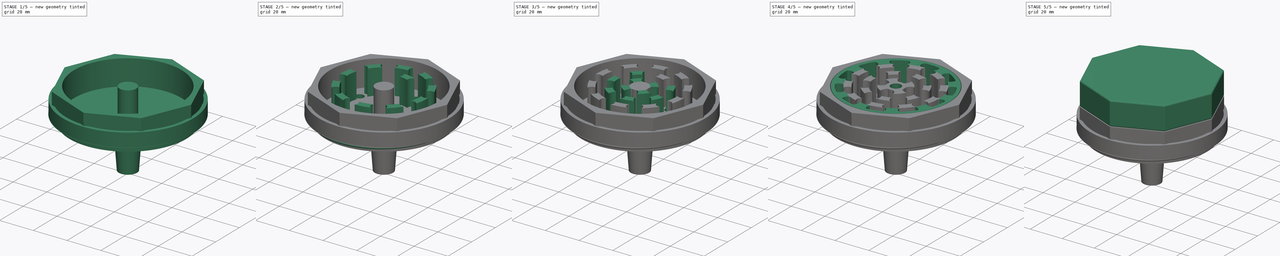
[diagram: build sequence overview — one tinted view per stage of 5, left to right]
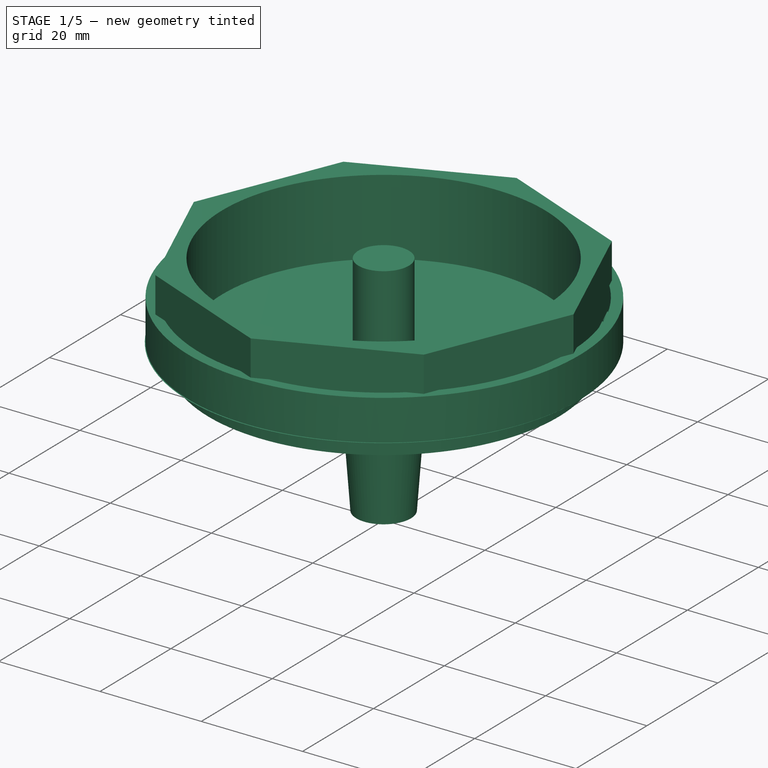
[diagram: stage 1 of 5 — iso view after this stage's code; geometry added in this stage tinted green]
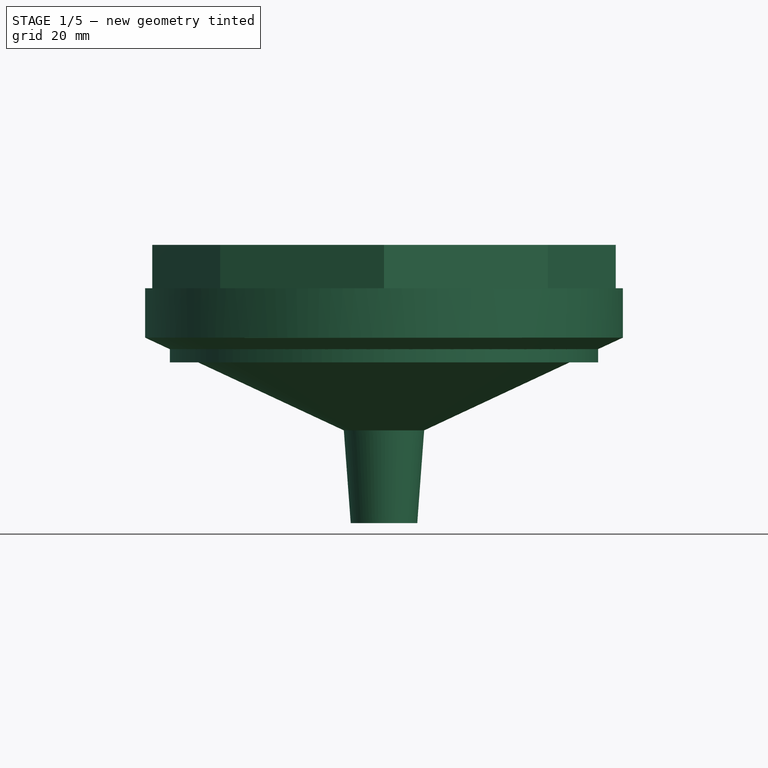
[diagram: stage 1 of 5 — front view after this stage's code; geometry added in this stage tinted green]
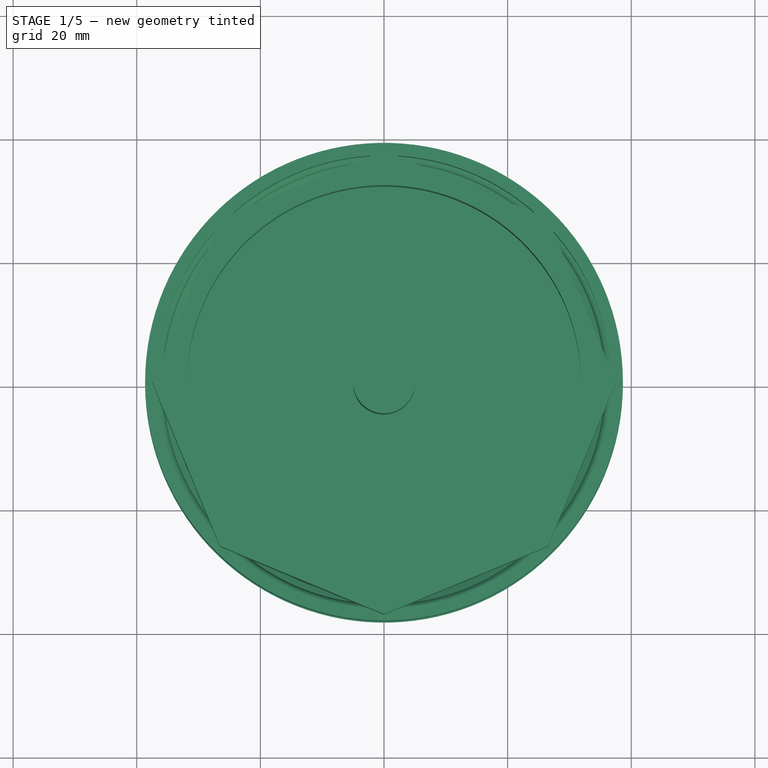
[diagram: stage 1 of 5 — top view after this stage's code; geometry added in this stage tinted green]
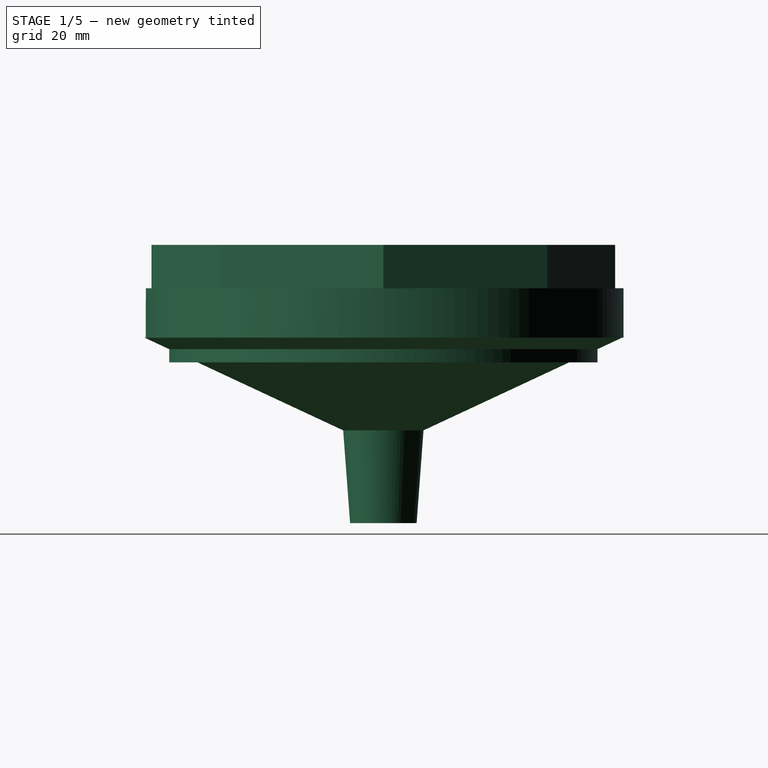
[diagram: stage 1 of 5 — right view after this stage's code; geometry added in this stage tinted green]
FCSTD DOCUMENT  (FreeCAD 2023.131R26244 +5365 (Git))
Label: Weed Cone Grinder
License: All rights reserved
LicenseURL: http://en.wikipedia.org/wiki/All_rights_reserved
objects: Sketcher::SketchObject×19, PartDesign::Pad×10, PartDesign::PolarPattern×9, PartDesign::Pocket×6, PartDesign::Body×3, PartDesign::AdditiveHelix×2, Spreadsheet::Sheet×1, PartDesign::Fillet×1, PartDesign::Revolution×1
note: 128 computed .brp shape members not serialized (recipe doc carries the construction recipe); baked Part::Feature solids carry a one-line shape summary decoded from their .brp

FEATURE [Sketcher::SketchObject] Sketch004
  ArcFitTolerance = 1e-06
  AttachmentSupport = -> [XY_Plane001]
  ExternalBSplineMaxDegree = 5
  ExternalBSplineTolerance = 0.0001
  FullyConstrained = false
  InternalTolerance = 1e-06
  InvalidShape = false
  MakeInternals = false
  MapMode = 5
  Support = -> [XY_Plane001]
  TreeRank = 33
  ValidateShape = true
  expr: Constraints[24] = <<Parameters>>.Diameter
  sketch-geometry (9):
    g0: LineSegment StartX=-26.5165 StartY=26.5165 StartZ=0 EndX=-37.5 EndY=1.42499e-11 EndZ=0
    g1: LineSegment StartX=-37.5 StartY=1.42516e-11 StartZ=0 EndX=-26.5165 EndY=-26.5165 EndZ=0
    g2: LineSegment StartX=-26.5165 StartY=-26.5165 StartZ=0 EndX=2.84999e-11 EndY=-37.5 EndZ=0
    g3: LineSegment StartX=2.8501e-11 StartY=-37.5 StartZ=0 EndX=26.5165 EndY=-26.5165 EndZ=0
    g4: LineSegment StartX=26.5165 StartY=-26.5165 StartZ=0 EndX=37.5 EndY=1.42499e-11 EndZ=0
    g5: LineSegment StartX=37.5 StartY=1.42512e-11 StartZ=0 EndX=26.5165 EndY=26.5165 EndZ=0
    g6: LineSegment StartX=26.5165 StartY=26.5165 StartZ=0 EndX=0 EndY=37.5 EndZ=0
    g7: LineSegment StartX=0 StartY=37.5 StartZ=0 EndX=-26.5165 EndY=26.5165 EndZ=0
    g8: Circle [constr] CenterX=0 CenterY=3e-16 CenterZ=0 NormalX=0 NormalY=0 NormalZ=1 AngleXU=0 Radius=37.5
  constraints (19):
    c: Coincident(g0,g1)
    c: Coincident(g1,g2)
    c: Coincident(g2,g3)
    c: Coincident(g3,g4)
    c: Coincident(g4,g5)
    c: Coincident(g5,g6)
    c: Coincident(g6,g7)
    c: Coincident(g7,g0)
    c: Equal(g0, g1-g7) x7
    c: PointOnObject(g0,g8)
    c: PointOnObject(g1,g8)
    c: PointOnObject(g2,g8)
    c: PointOnObject(g3,g8)
    c: PointOnObject(g4,g8)
    c: PointOnObject(g5,g8)
    c: PointOnObject(g6,g8)
    c: PointOnObject(g7,g8)
    c: PointOnObject(g6,g-2)
    c: Diameter(g8) = 75
FEATURE [PartDesign::Pad] Pad004  label="Bottom Ring"
  AddSubType = 0
  AlongSketchNormal = false
  AutoTaperInnerAngle = true
  CheckUpToFaceLimits = true
  ClaimChildren = false
  Direction = (0,0,1)
  Fit = 0
  FitJoin = 0
  InnerFit = 0
  InnerFitJoin = 0
  InvalidShape = false
  Length = 15
  Length2 = 4
  Linearize = true
  NewSolid = false
  Profile = -> Sketch004
  Suppress = false
  TaperInnerAngle = 0
  TaperInnerAngleRev = 0
  TreeRank = 34
  Type = 4
  ValidateShape = true
  _ProfileBasedVersion = 1
  expr: Length = <<Parameters>>.Tooth_Height
  expr: Length2 = <<Parameters>>.Wall_Thickness * 2
FEATURE [PartDesign::Body] Body  label="Top"
  AutoGroupSolids = false
  ClaimAllChildren = false
  ExportMode = 0
  Group = -> [Sketch,Pad,Sketch001,Pad001,PolarPattern,Sketch002,Pad002,PolarPattern001,Sketch003,Pad003,PolarPattern002,Sketch008,Pad008,Fillet]
  InvalidShape = false
  Origin = -> Origin
  Tip = -> Fillet
  TreeRank = 11
  ValidateShape = true
  _ExportChildren = -> [Pad,Pad001,PolarPattern,Pad002,PolarPattern001,Pad003,PolarPattern002,Pad008,Fillet]
  _GroupVersion = 1
FEATURE [Sketcher::SketchObject] Sketch009
  ArcFitTolerance = 1e-06
  ExternalBSplineMaxDegree = 5
  ExternalBSplineTolerance = 0.0001
  FullyConstrained = true
  InternalTolerance = 1e-06
  InvalidShape = false
  MakeInternals = false
  MapMode = 5
  Placement = pos=(0,0,15) rot=(0,0,1;0rad)
  TreeRank = 48
  ValidateShape = true
  expr: Constraints[1] = <<Parameters>>.Overlap_Diameter + <<Parameters>>.Overlap_Spacing
  expr: Constraints[3] = <<Parameters>>.Post_Diameter
  sketch-geometry (2):
    g0: Circle CenterX=0 CenterY=0 CenterZ=0 NormalX=0 NormalY=0 NormalZ=1 AngleXU=0 Radius=31.8955
    g1: Circle CenterX=0 CenterY=0 CenterZ=0 NormalX=0 NormalY=0 NormalZ=1 AngleXU=0 Radius=5
  constraints (4):
    c: Coincident(g0,g-1)
    c: Diameter(g0) = 63.791
    c: Coincident(g1,g0)
    c: Diameter(g1) = 10
FEATURE [PartDesign::Pocket] Pocket  label="Bottom Hollow"
  AddSubType = 1
  AutoTaperInnerAngle = true
  BaseFeature = -> Pad004
  CheckUpToFaceLimits = true
  ClaimChildren = false
  Fit = 0
  FitJoin = 0
  InnerFit = 0
  InnerFitJoin = 0
  InvalidShape = false
  Length = 15
  Length2 = 100
  Linearize = true
  NewSolid = false
  Profile = -> Sketch009
  Suppress = false
  TaperInnerAngle = 0
  TaperInnerAngleRev = 0
  TreeRank = 49
  Type = 0
  ValidateShape = true
  _ProfileBasedVersion = 1
  _Version = 1
  expr: Length = <<Parameters>>.Tooth_Height
FEATURE [Sketcher::SketchObject] Sketch010
  ArcFitTolerance = 1e-06
  AttachmentSupport = -> [Pocket]
  ExternalBSplineMaxDegree = 5
  ExternalBSplineTolerance = 0.0001
  FullyConstrained = true
  InternalTolerance = 1e-06
  InvalidShape = false
  MakeInternals = false
  MapMode = 5
  Placement = pos=(0,0,-4) rot=(1,0,0;3.14159rad)
  Support = -> [Pocket]
  TreeRank = 50
  ValidateShape = true
  expr: Constraints[2] = <<Parameters>>.Diameter + 1
  expr: Constraints[3] = <<Parameters>>.Threaded_Ring_Diameter
  sketch-geometry (2):
    g0: Circle CenterX=0 CenterY=0 CenterZ=0 NormalX=0 NormalY=0 NormalZ=1 AngleXU=0 Radius=38
    g1: Circle CenterX=0 CenterY=0 CenterZ=0 NormalX=0 NormalY=0 NormalZ=1 AngleXU=0 Radius=34.6455
  constraints (4):
    c: Coincident(g0,g-1)
    c: Coincident(g1,g0)
    c: Diameter(g0) = 76
    c: Diameter(g1) = 69.291
FEATURE [PartDesign::Pocket] Pocket001  label="Bottom Threaded Ring"
  AddSubType = 1
  AutoTaperInnerAngle = true
  BaseFeature = -> Pocket
  CheckUpToFaceLimits = true
  ClaimChildren = false
  Fit = 0
  FitJoin = 0
  InnerFit = 0
  InnerFitJoin = 0
  InvalidShape = false
  Length = 8
  Length2 = 100
  Linearize = true
  NewSolid = false
  Profile = -> Sketch010
  Suppress = false
  TaperInnerAngle = 0
  TaperInnerAngleRev = 0
  TreeRank = 51
  Type = 0
  ValidateShape = true
  _ProfileBasedVersion = 1
  _Version = 1
  expr: Length = <<Parameters>>.Threaded_Height
FEATURE [PartDesign::Body] Body001  label="Bottom"
  AutoGroupSolids = false
  ClaimAllChildren = false
  ExportMode = 0
  Group = -> [Sketch004,Pad004,Sketch009,Pocket,Sketch010,Pocket001,Sketch011,Helix,Sketch012,Pad009,PolarPattern003,Sketch013,Pocket002,PolarPattern004,Sketch014,Pad010,PolarPattern005,Sketch015,Pocket003,PolarPattern006,Sketch016,Pad011,PolarPattern007,Sketch017,Pocket004,PolarPattern008,Sketch018,Pocket005]
  InvalidShape = false
  Origin = -> Origin001
  Tip = -> Pocket005
  TreeRank = 32
  ValidateShape = true
  _ExportChildren = -> [Pad004,Pocket,Pocket001,Helix,Pad009,PolarPattern003,Pocket002,PolarPattern004,Pad010,PolarPattern005,Pocket003,PolarPattern006,Pad011,PolarPattern007,Pocket004,PolarPattern008,Pocket005]
  _GroupVersion = 1
FEATURE [Sketcher::SketchObject] Sketch019
  ArcFitTolerance = 1e-06
  AttachmentSupport = -> [XY_Plane002]
  ExternalBSplineMaxDegree = 5
  ExternalBSplineTolerance = 0.0001
  FullyConstrained = false
  InternalTolerance = 1e-06
  InvalidShape = false
  MakeInternals = false
  MapMode = 5
  Support = -> [XY_Plane002]
  TreeRank = 85
  ValidateShape = true
  expr: Constraints[2] = <<Parameters>>.Threaded_Ring_Diameter + 2 * <<Parameters>>.Thread_Height
  expr: Constraints[3] = <<Parameters>>.Threaded_Ring_Diameter + 2 * <<Parameters>>.Thread_Height + 2 * <<Parameters>>.Wall_Thickness
  sketch-geometry (2):
    g0: Circle CenterX=0 CenterY=0.20673 CenterZ=0 NormalX=0 NormalY=0 NormalZ=1 AngleXU=0 Radius=36.6455
    g1: Circle CenterX=0 CenterY=0.20673 CenterZ=0 NormalX=0 NormalY=0 NormalZ=1 AngleXU=0 Radius=38.6455
  constraints (4):
    c: PointOnObject(g0,g-2)
    c: Coincident(g1,g0)
    c: Diameter(g0) = 73.291
    c: Diameter(g1) = 77.291
FEATURE [PartDesign::Pad] Pad012  label="Cone Threaded Ring"
  AddSubType = 0
  AlongSketchNormal = false
  AutoTaperInnerAngle = true
  CheckUpToFaceLimits = true
  ClaimChildren = false
  Direction = (0,0,1)
  Fit = 0
  FitJoin = 0
  InnerFit = 0
  InnerFitJoin = 0
  InvalidShape = false
  Length = 8
  Length2 = 100
  Linearize = true
  NewSolid = false
  Profile = -> Sketch019
  Suppress = false
  TaperInnerAngle = 0
  TaperInnerAngleRev = 0
  TreeRank = 86
  Type = 0
  ValidateShape = true
  _ProfileBasedVersion = 1
  expr: Length = <<Parameters>>.Threaded_Height
FEATURE [Sketcher::SketchObject] Sketch020
  ArcFitTolerance = 1e-06
  AttachmentSupport = -> [XZ_Plane002]
  ExternalBSplineMaxDegree = 5
  ExternalBSplineTolerance = 0.0001
  FullyConstrained = true
  InternalTolerance = 1e-06
  InvalidShape = false
  MakeInternals = false
  MapMode = 5
  Placement = pos=(0,0,0) rot=(1,0,0;1.5708rad)
  Support = -> [XZ_Plane002]
  TreeRank = 87
  ValidateShape = true
  expr: Constraints[1] = <<Parameters>>.Thread_Height
  expr: Constraints[5] = (<<Parameters>>.Threaded_Ring_Diameter + 2 * <<Parameters>>.Thread_Height) / 2 + 0.1
  sketch-geometry (2):
    g0: LineSegment StartX=36.7455 StartY=0 StartZ=0 EndX=36.7455 EndY=2 EndZ=0
    g1: ArcOfCircle CenterX=36.7455 CenterY=1 CenterZ=0 NormalX=0 NormalY=0 NormalZ=1 AngleXU=0 Radius=1 StartAngle=1.5708 EndAngle=4.71239
  constraints (7):
    c: Vertical(g0)
    c: DistanceY(g0,g0) = 2
    c: Coincident(g1,g0)
    c: Coincident(g1,g0)
    c: PointOnObject(g1,g0)
    c: DistanceX(g-1,g0) = 36.7455
    c: PointOnObject(g0,g-1)
FEATURE [PartDesign::AdditiveHelix] Helix001  label="Cone Threads"
  AddSubType = 0
  Angle = 0
  Axis = (0,2e-16,1)
  Base = (0,0,0)
  BaseFeature = -> Pad012
  ClaimChildren = false
  Fit = 0
  FitJoin = 0
  Growth = 0
  HasBeenEdited = true
  Height = 6
  InnerFit = 0
  InnerFitJoin = 0
  InvalidShape = false
  LeftHanded = false
  Linearize = true
  Mode = 0
  NewSolid = false
  Outside = false
  Pitch = 6
  Profile = -> Sketch020
  ReferenceAxis = -> Sketch020 [V_Axis]
  Suppress = false
  TreeRank = 88
  Turns = 1
  ValidateShape = true
  _ProfileBasedVersion = 1
  expr: Height = <<Parameters>>.Threaded_Height - <<Parameters>>.Thread_Height
  expr: Pitch = <<Parameters>>.Thread_Pitch
FEATURE [Sketcher::SketchObject] Sketch021
  ArcFitTolerance = 1e-06
  AttachmentSupport = -> [XZ_Plane002]
  ExternalBSplineMaxDegree = 5
  ExternalBSplineTolerance = 0.0001
  FullyConstrained = true
  InternalTolerance = 1e-06
  InvalidShape = false
  MakeInternals = false
  MapMode = 5
  Placement = pos=(0,0,0) rot=(1,0,0;1.5708rad)
  Support = -> [XZ_Plane002]
  TreeRank = 89
  ValidateShape = true
  expr: Constraints[15] = <<Parameters>>.Cone_Insert_Width / 2
  expr: Constraints[16] = <<Parameters>>.Cone_Collection_Height
  expr: Constraints[17] = <<Parameters>>.Cone_Insert_Height
  expr: Constraints[18] = (<<Parameters>>.Threaded_Ring_Diameter + 2 * <<Parameters>>.Thread_Height + 2 * <<Parameters>>.Wall_Thickness) / 2
  expr: Constraints[21] = <<Parameters>>.Cone_Angle / 2
  expr: Constraints[4] = <<Parameters>>.Cone_Angle / 2
  sketch-geometry (10):
    g0: LineSegment StartX=-38.6455 StartY=0 StartZ=0 EndX=-37.6455 EndY=0.0743128 EndZ=0
    g1: GeomPoint [constr] X=-5.50572 Y=-14.923 Z=0
    g2: GeomPoint [constr] X=-4.38531 Y=-30 Z=0
    g3: LineSegment StartX=-5.50572 StartY=-14.923 StartZ=0 EndX=-4.38531 EndY=-30 EndZ=0
    g4: LineSegment StartX=-37.6455 StartY=0.0743128 StartZ=0 EndX=-5.50572 EndY=-14.923 EndZ=0
    g5: GeomPoint [constr] X=-6.5 Y=-15 Z=0
    g6: GeomPoint [constr] X=-5.38531 Y=-30 Z=0
    g7: LineSegment StartX=-4.38531 StartY=-30 StartZ=0 EndX=-5.38531 EndY=-30 EndZ=0
    g8: LineSegment StartX=-5.38531 StartY=-30 StartZ=0 EndX=-6.5 EndY=-15 EndZ=0
    g9: LineSegment StartX=-6.5 StartY=-15 StartZ=0 EndX=-38.6455 EndY=0 EndZ=0
  constraints (22):
    c: PointOnObject(g0,g-1)
    c: DistanceX(g0,g0) = 1
    c: Coincident(g3,g1)
    c: Coincident(g3,g2)
    c: Angle(g-2,g3) = 0.0741765
    c: Coincident(g4,g0)
    c: Coincident(g4,g1)
    c: Coincident(g7,g2)
    c: Coincident(g7,g6)
    c: Coincident(g8,g7)
    c: Coincident(g8,g5)
    c: Coincident(g9,g8)
    c: Coincident(g9,g0)
    c: Parallel(g4,g9)
    c: Parallel(g3,g8)
    c: DistanceX(g8,g-1) = 6.5
    c: DistanceY(g8,g-1) = 15
    c: DistanceY(g7,g8) = 15
    c: DistanceX(g0,g-1) = 38.6455
    c: Horizontal(g7)
    c: DistanceX(g7,g3) = 1
    c: Angle(g-1,g0) = 0.0741765
FEATURE [PartDesign::Revolution] Revolution  label="Cone Collector"
  AddSubType = 0
  Angle = 360
  Axis = (0,2e-16,1)
  Base = (0,0,0)
  BaseFeature = -> Helix001
  ClaimChildren = false
  Fit = 0
  FitJoin = 0
  InnerFit = 0
  InnerFitJoin = 0
  InvalidShape = false
  Linearize = true
  NewSolid = false
  Profile = -> Sketch021
  ReferenceAxis = -> Sketch021 [V_Axis]
  Suppress = false
  TreeRank = 90
  ValidateShape = true
  _ProfileBasedVersion = 1
FEATURE [PartDesign::Body] Body002  label="Cone"
  AutoGroupSolids = false
  ClaimAllChildren = false
  ExportMode = 0
  Group = -> [Sketch019,Pad012,Sketch020,Helix001,Sketch021,Revolution]
  InvalidShape = false
  Origin = -> Origin002
  Tip = -> Revolution
  TreeRank = 84
  ValidateShape = true
  _ExportChildren = -> [Pad012,Helix001,Revolution]
  _GroupVersion = 1
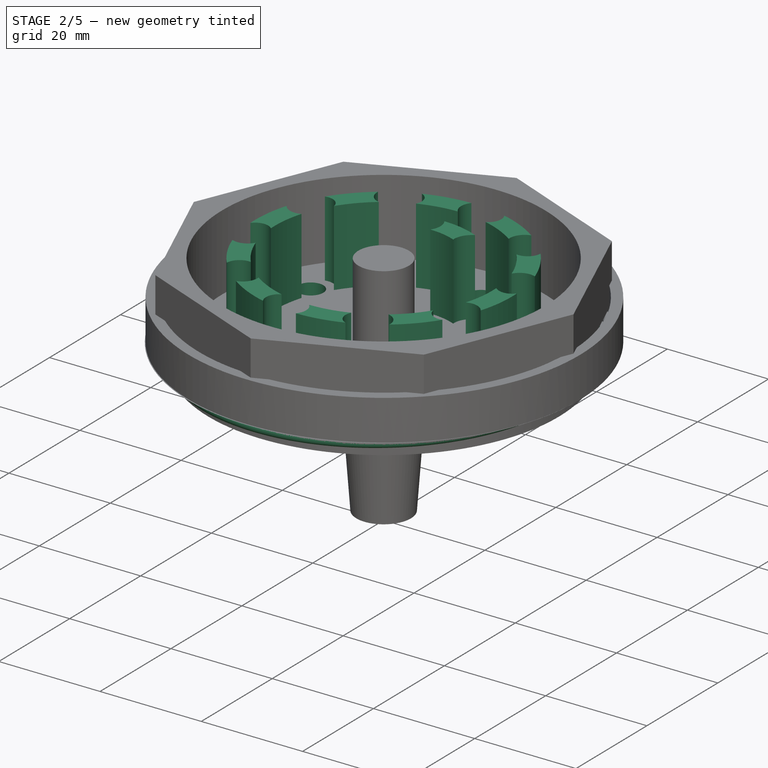
[diagram: stage 2 of 5 — iso view after this stage's code; geometry added in this stage tinted green]
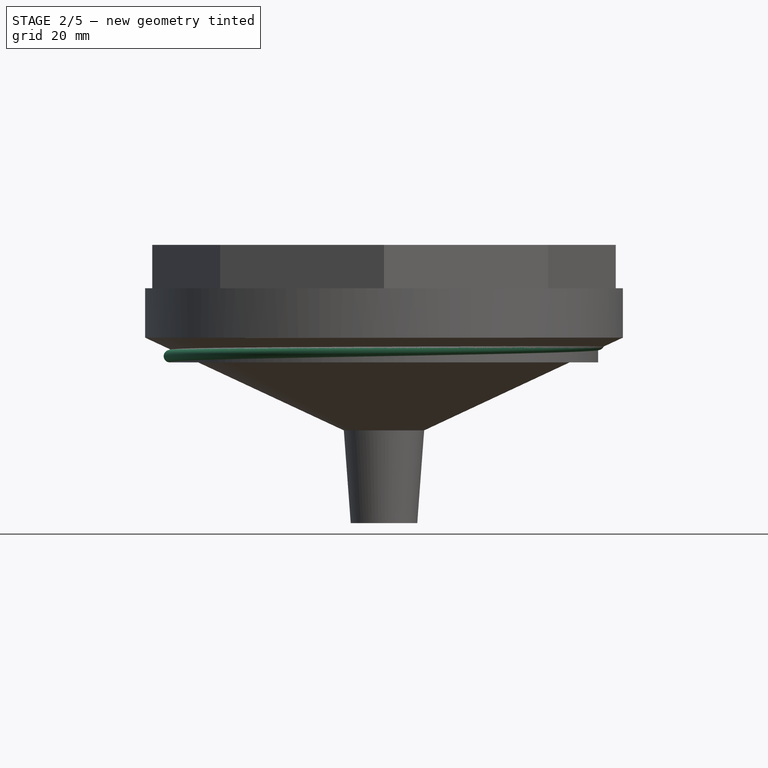
[diagram: stage 2 of 5 — front view after this stage's code; geometry added in this stage tinted green]
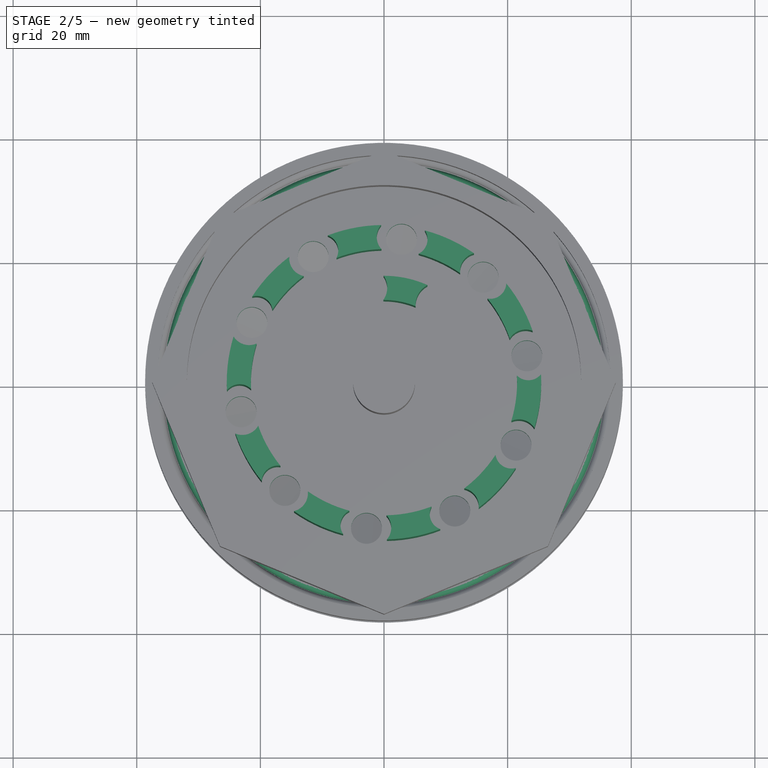
[diagram: stage 2 of 5 — top view after this stage's code; geometry added in this stage tinted green]
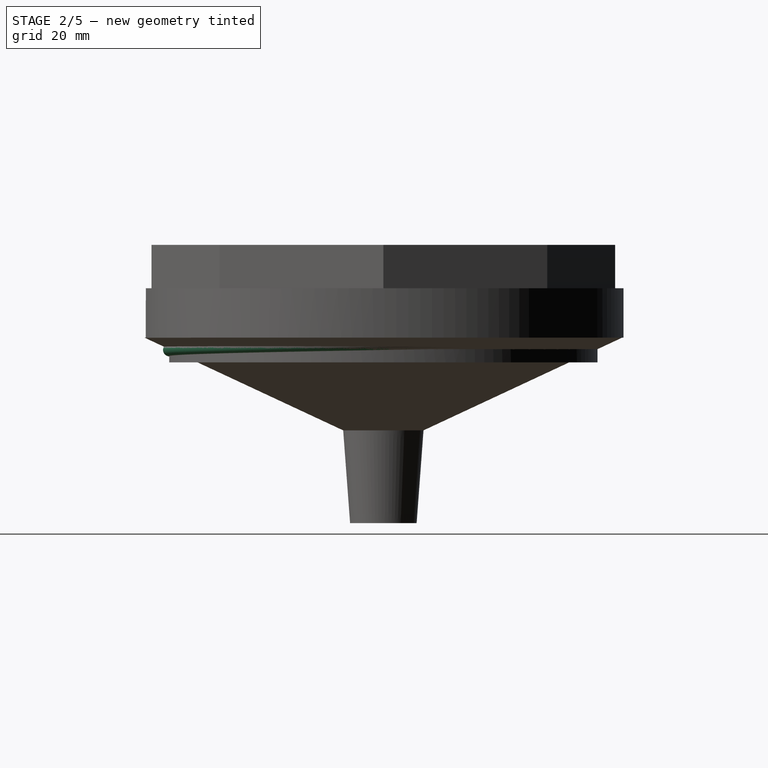
[diagram: stage 2 of 5 — right view after this stage's code; geometry added in this stage tinted green]
FEATURE [Sketcher::SketchObject] Sketch011
  ArcFitTolerance = 1e-06
  AttachmentSupport = -> [XZ_Plane001]
  ExternalBSplineMaxDegree = 5
  ExternalBSplineTolerance = 0.0001
  FullyConstrained = true
  InternalTolerance = 1e-06
  InvalidShape = false
  MakeInternals = false
  MapMode = 5
  Placement = pos=(0,0,0) rot=(1,0,0;1.5708rad)
  Support = -> [XZ_Plane001]
  TreeRank = 52
  ValidateShape = true
  expr: Constraints[1] = <<Parameters>>.Thread_Height
  expr: Constraints[5] = <<Parameters>>.Threaded_Ring_Diameter / 2
  expr: Constraints[6] = <<Parameters>>.Wall_Thickness * 2
  sketch-geometry (2):
    g0: LineSegment StartX=-34.6455 StartY=-2 StartZ=0 EndX=-34.6455 EndY=-4 EndZ=0
    g1: ArcOfCircle CenterX=-34.6455 CenterY=-3 CenterZ=0 NormalX=0 NormalY=0 NormalZ=1 AngleXU=0 Radius=1 StartAngle=1.5708 EndAngle=4.71239
  constraints (7):
    c: Vertical(g0)
    c: DistanceY(g0,g0) = 2
    c: Coincident(g1,g0)
    c: Coincident(g1,g0)
    c: PointOnObject(g1,g0)
    c: DistanceX(g0,g-1) = 34.6455
    c: DistanceY(g0,g-1) = 4
FEATURE [PartDesign::AdditiveHelix] Helix
  AddSubType = 0
  Angle = 0
  Axis = (0,2e-16,1)
  Base = (0,0,0)
  BaseFeature = -> Pocket001
  ClaimChildren = false
  Fit = 0
  FitJoin = 0
  Growth = 0
  HasBeenEdited = true
  Height = 6
  InnerFit = 0
  InnerFitJoin = 0
  InvalidShape = false
  LeftHanded = false
  Linearize = true
  Mode = 0
  NewSolid = false
  Outside = false
  Pitch = 4
  Profile = -> Sketch011
  ReferenceAxis = -> Sketch011 [V_Axis]
  Suppress = false
  TreeRank = 53
  Turns = 1.5
  ValidateShape = true
  _ProfileBasedVersion = 1
  expr: Height = <<Parameters>>.Threaded_Height - <<Parameters>>.Thread_Height
  expr: Pitch = <<Parameters>>.Thread_Pitch - <<Parameters>>.Thread_Height
FEATURE [Sketcher::SketchObject] Sketch012
  ArcFitTolerance = 1e-06
  AttachmentSupport = -> [Helix]
  ExternalBSplineMaxDegree = 5
  ExternalBSplineTolerance = 0.0001
  FullyConstrained = false
  InternalTolerance = 1e-06
  InvalidShape = false
  MakeInternals = false
  MapMode = 5
  Placement = pos=(0,0,-1.8e-15) rot=(0,0,1;0rad)
  Support = -> [Helix]
  TreeRank = 54
  ValidateShape = true
  expr: Constraints[2] = <<Parameters>>.Bottom_Outer_Diameter_Max
  expr: Constraints[3] = <<Parameters>>.Bottom_Outer_Diameter_Min
  sketch-geometry (4):
    g0: ArcOfCircle CenterX=0 CenterY=0 CenterZ=0 NormalX=0 NormalY=0 NormalZ=1 AngleXU=0 Radius=25.4379 StartAngle=0.961063 EndAngle=1.30804
    g1: ArcOfCircle CenterX=0 CenterY=0 CenterZ=0 NormalX=0 NormalY=0 NormalZ=1 AngleXU=0 Radius=21.5303 StartAngle=0.961419 EndAngle=1.30786
    g2: ArcOfCircle CenterX=4.44119 CenterY=23.1225 CenterZ=0 NormalX=0 NormalY=0 NormalZ=1 AngleXU=0 Radius=2.60243 StartAngle=5.17218 EndAngle=6.87059
    g3: ArcOfCircle CenterX=15.2781 CenterY=17.9687 CenterZ=0 NormalX=0 NormalY=0 NormalZ=1 AngleXU=0 Radius=2.97165 StartAngle=1.81243 EndAngle=3.24736
  constraints (9):
    c: Coincident(g0,g-1)
    c: Coincident(g1,g0)
    c: Diameter(g0) = 50.8758
    c: Diameter(g1) = 43.0606
    c: Coincident(g2,g0)
    c: Coincident(g2,g1)
    c: Coincident(g3,g0)
    c: Coincident(g3,g1)
    c: Distance(g2,g3) = 12
FEATURE [PartDesign::Pad] Pad009  label="Bottom Outer Tooth Profile"
  AddSubType = 0
  AlongSketchNormal = false
  AutoTaperInnerAngle = true
  BaseFeature = -> Helix
  CheckUpToFaceLimits = true
  ClaimChildren = false
  Direction = (0,0,1)
  Fit = 0
  FitJoin = 0
  InnerFit = 0
  InnerFitJoin = 0
  InvalidShape = false
  Length = 15
  Length2 = 100
  Linearize = true
  NewSolid = false
  Profile = -> Sketch012
  Suppress = false
  TaperInnerAngle = 0
  TaperInnerAngleRev = 0
  TreeRank = 55
  Type = 0
  ValidateShape = true
  _ProfileBasedVersion = 1
  expr: Length = <<Parameters>>.Tooth_Height
FEATURE [PartDesign::PolarPattern] PolarPattern003  label="Bottom Outer Tooth Ring"
  AddSubType = 0
  Angle = 360
  Axis = -> Sketch012 [N_Axis]
  BaseFeature = -> Pad009
  CopyShape = false
  InvalidShape = false
  NewSolid = false
  Occurrences = 10
  OriginalSubs = -> [Pad009]
  Originals = -> [Pad009]
  ParallelTransform = true
  SubTransform = true
  Suppress = false
  TreeRank = 56
  ValidateShape = true
  _Version = 3
  expr: Occurrences = <<Parameters>>.Bottom_Outer_Count
FEATURE [Sketcher::SketchObject] Sketch013
  ArcFitTolerance = 1e-06
  AttachmentSupport = -> [PolarPattern003]
  ExternalBSplineMaxDegree = 5
  ExternalBSplineTolerance = 0.0001
  FullyConstrained = false
  InternalTolerance = 1e-06
  InvalidShape = false
  MakeInternals = false
  MapMode = 5
  Placement = pos=(0,0,-1.8e-15) rot=(0,0,1;0rad)
  Support = -> [PolarPattern003]
  TreeRank = 57
  ValidateShape = true
  expr: Constraints[0] = <<Parameters>>.Hole_Diameter
  sketch-geometry (1):
    g0: Circle CenterX=-11.4485 CenterY=20.581 CenterZ=0 NormalX=0 NormalY=0 NormalZ=1 AngleXU=0 Radius=2.5
  constraints (1):
    c: Diameter(g0) = 5
FEATURE [PartDesign::Pocket] Pocket002  label="Bottom Outer Hole Profile"
  AddSubType = 1
  AutoTaperInnerAngle = true
  BaseFeature = -> PolarPattern003
  CheckUpToFaceLimits = true
  ClaimChildren = false
  Fit = 0
  FitJoin = 0
  InnerFit = 0
  InnerFitJoin = 0
  InvalidShape = false
  Length = 5
  Length2 = 100
  Linearize = true
  NewSolid = false
  Profile = -> Sketch013
  Suppress = false
  TaperInnerAngle = 0
  TaperInnerAngleRev = 0
  TreeRank = 58
  Type = 1
  ValidateShape = true
  _ProfileBasedVersion = 1
  _Version = 1
FEATURE [PartDesign::PolarPattern] PolarPattern004  label="Bottom Outer Hole Ring"
  AddSubType = 0
  Angle = 360
  Axis = -> Sketch013 [N_Axis]
  BaseFeature = -> Pocket002
  CopyShape = false
  InvalidShape = false
  NewSolid = false
  Occurrences = 10
  OriginalSubs = -> [Pocket002]
  Originals = -> [Pocket002]
  ParallelTransform = true
  SubTransform = true
  Suppress = false
  TreeRank = 59
  ValidateShape = true
  _Version = 3
  expr: Occurrences = <<Parameters>>.Bottom_Outer_Count
FEATURE [Sketcher::SketchObject] Sketch014
  ArcFitTolerance = 1e-06
  AttachmentSupport = -> [PolarPattern004]
  ExternalBSplineMaxDegree = 5
  ExternalBSplineTolerance = 0.0001
  FullyConstrained = false
  InternalTolerance = 1e-06
  InvalidShape = false
  MakeInternals = false
  MapMode = 5
  Placement = pos=(0,0,-1.8e-15) rot=(0,0,1;0rad)
  Support = -> [PolarPattern004]
  TreeRank = 60
  ValidateShape = true
  expr: Constraints[2] = <<Parameters>>.Bottom_Middle_Diameter_Max
  expr: Constraints[3] = <<Parameters>>.Bottom_Middle_Diameter_Min
  sketch-geometry (4):
    g0: ArcOfCircle CenterX=0 CenterY=0 CenterZ=0 NormalX=0 NormalY=0 NormalZ=1 AngleXU=0 Radius=17.2227 StartAngle=1.14963 EndAngle=1.57436
    g1: ArcOfCircle CenterX=0 CenterY=0 CenterZ=0 NormalX=0 NormalY=0 NormalZ=1 AngleXU=0 Radius=13.3152 StartAngle=1.17626 EndAngle=1.5787
    g2: ArcOfCircle CenterX=-2.9314 CenterY=15.3007 CenterZ=0 NormalX=0 NormalY=0 NormalZ=1 AngleXU=0 Radius=3.45417 StartAngle=5.67066 EndAngle=6.87325
    g3: ArcOfCircle CenterX=8.73993 CenterY=12.5114 CenterZ=0 NormalX=0 NormalY=0 NormalZ=1 AngleXU=0 Radius=3.62852 StartAngle=2.05802 EndAngle=3.20202
  constraints (9):
    c: Coincident(g0,g-1)
    c: Coincident(g1,g0)
    c: Diameter(g0) = 34.4455
    c: Diameter(g1) = 26.6303
    c: Coincident(g2,g0)
    c: Coincident(g2,g1)
    c: Coincident(g3,g0)
    c: Coincident(g3,g1)
    c: Distance(g2,g3) = 12
FEATURE [PartDesign::Pad] Pad010  label="Bottom Middle Tooth Profile"
  AddSubType = 0
  AlongSketchNormal = false
  AutoTaperInnerAngle = true
  BaseFeature = -> PolarPattern004
  CheckUpToFaceLimits = true
  ClaimChildren = false
  Direction = (0,0,1)
  Fit = 0
  FitJoin = 0
  InnerFit = 0
  InnerFitJoin = 0
  InvalidShape = false
  Length = 15
  Length2 = 100
  Linearize = true
  NewSolid = false
  Profile = -> Sketch014
  Suppress = false
  TaperInnerAngle = 0
  TaperInnerAngleRev = 0
  TreeRank = 61
  Type = 0
  ValidateShape = true
  _ProfileBasedVersion = 1
  expr: Length = <<Parameters>>.Tooth_Height
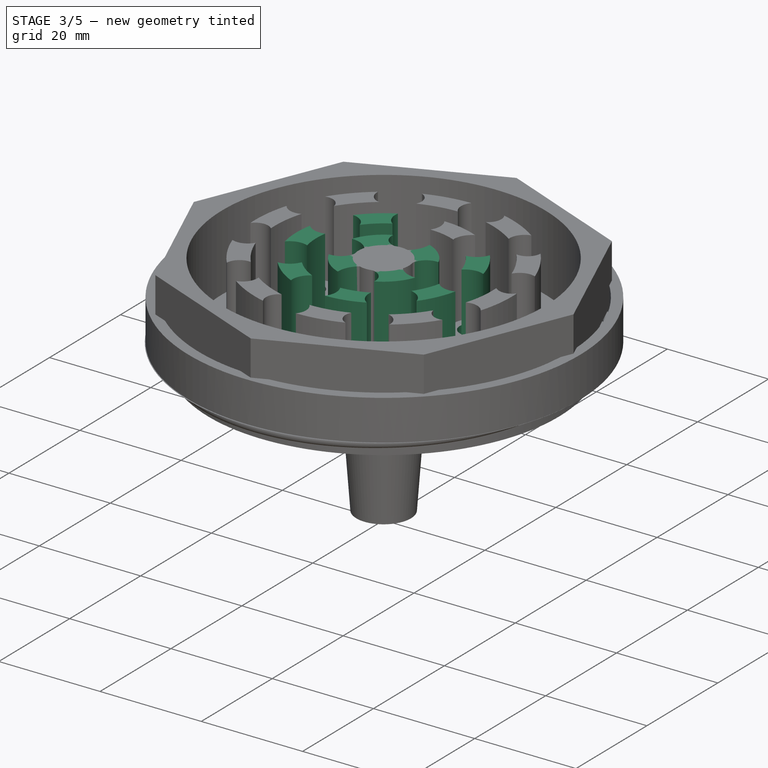
[diagram: stage 3 of 5 — iso view after this stage's code; geometry added in this stage tinted green]
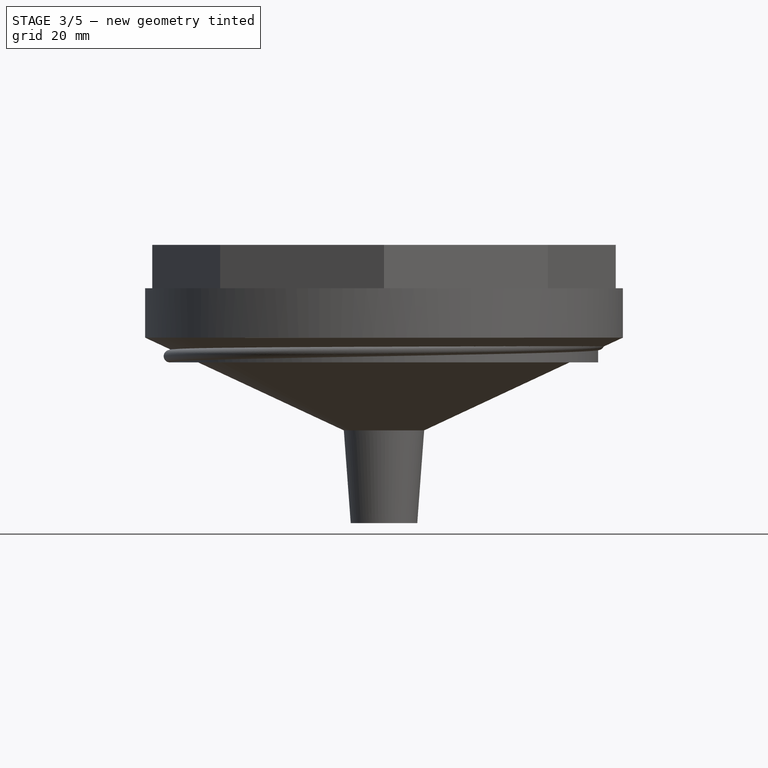
[diagram: stage 3 of 5 — front view after this stage's code; geometry added in this stage tinted green]
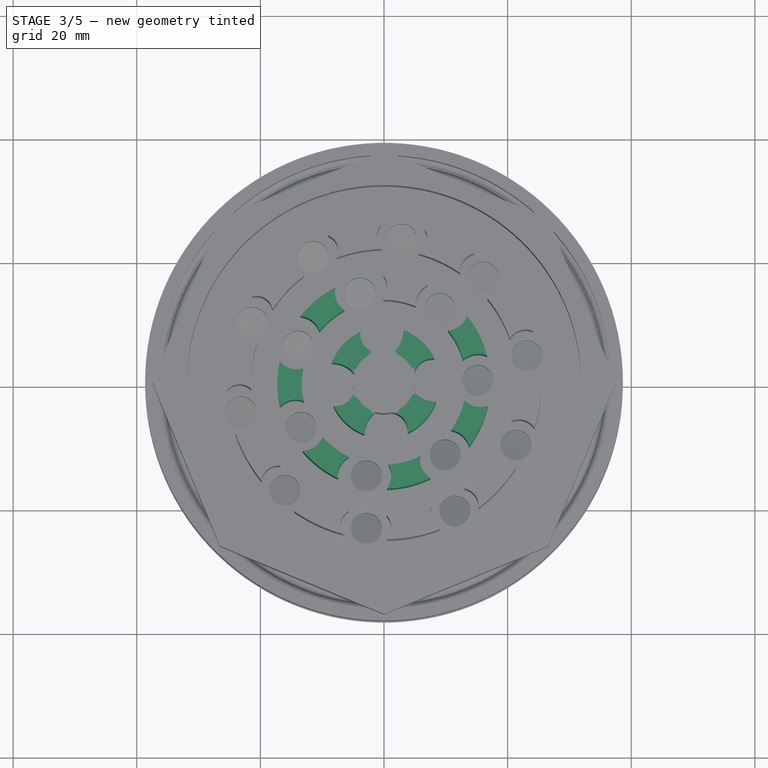
[diagram: stage 3 of 5 — top view after this stage's code; geometry added in this stage tinted green]
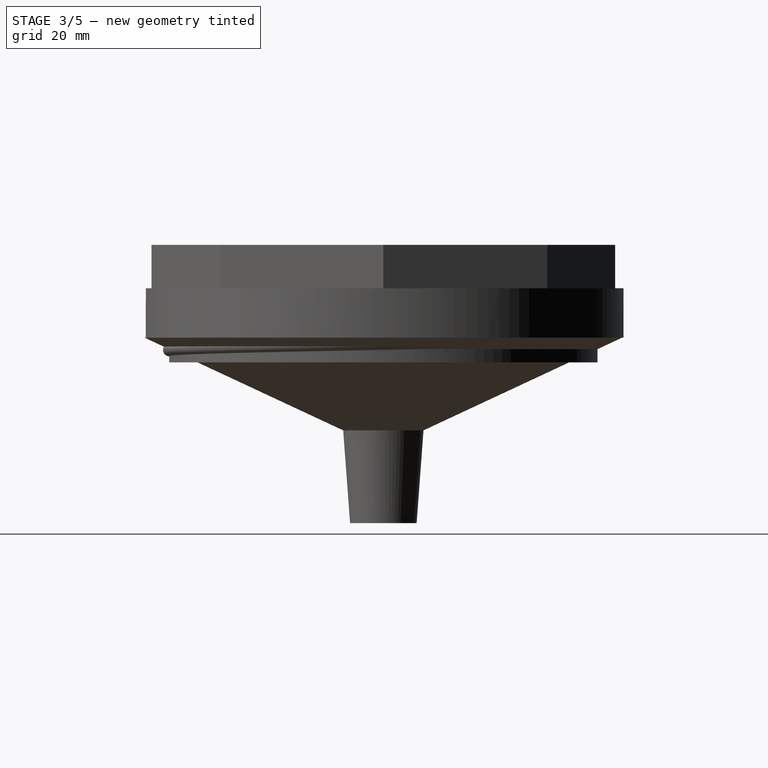
[diagram: stage 3 of 5 — right view after this stage's code; geometry added in this stage tinted green]
FEATURE [PartDesign::PolarPattern] PolarPattern005  label="Bottom Middle Tooth Ring"
  AddSubType = 0
  Angle = 360
  Axis = -> Sketch014 [N_Axis]
  BaseFeature = -> Pad010
  CopyShape = false
  InvalidShape = false
  NewSolid = false
  Occurrences = 7
  OriginalSubs = -> [Pad010]
  Originals = -> [Pad010]
  ParallelTransform = true
  SubTransform = true
  Suppress = false
  TreeRank = 62
  ValidateShape = true
  _Version = 3
  expr: Occurrences = <<Parameters>>.Bottom_Middle_Count
FEATURE [Sketcher::SketchObject] Sketch015
  ArcFitTolerance = 1e-06
  AttachmentSupport = -> [PolarPattern005]
  ExternalBSplineMaxDegree = 5
  ExternalBSplineTolerance = 0.0001
  FullyConstrained = false
  InternalTolerance = 1e-06
  InvalidShape = false
  MakeInternals = false
  MapMode = 5
  Placement = pos=(0,0,-1.8e-15) rot=(0,0,1;0rad)
  Support = -> [PolarPattern005]
  TreeRank = 63
  ValidateShape = true
  expr: Constraints[0] = <<Parameters>>.Hole_Diameter
  sketch-geometry (1):
    g0: Circle CenterX=-3.90459 CenterY=14.6546 CenterZ=0 NormalX=0 NormalY=0 NormalZ=1 AngleXU=0 Radius=2.5
  constraints (1):
    c: Diameter(g0) = 5
FEATURE [PartDesign::Pocket] Pocket003  label="Bottom Middle Hole Profile"
  AddSubType = 1
  AutoTaperInnerAngle = true
  BaseFeature = -> PolarPattern005
  CheckUpToFaceLimits = true
  ClaimChildren = false
  Fit = 0
  FitJoin = 0
  InnerFit = 0
  InnerFitJoin = 0
  InvalidShape = false
  Length = 5
  Length2 = 100
  Linearize = true
  NewSolid = false
  Profile = -> Sketch015
  Suppress = false
  TaperInnerAngle = 0
  TaperInnerAngleRev = 0
  TreeRank = 64
  Type = 1
  ValidateShape = true
  _ProfileBasedVersion = 1
  _Version = 1
FEATURE [PartDesign::PolarPattern] PolarPattern006  label="Bottom Middle Hole Ring"
  AddSubType = 0
  Angle = 360
  Axis = -> Sketch015 [N_Axis]
  BaseFeature = -> Pocket003
  CopyShape = false
  InvalidShape = false
  NewSolid = false
  Occurrences = 7
  OriginalSubs = -> [Pocket003]
  Originals = -> [Pocket003]
  ParallelTransform = true
  SubTransform = true
  Suppress = false
  TreeRank = 65
  ValidateShape = true
  _Version = 3
  expr: Occurrences = <<Parameters>>.Bottom_Middle_Count
FEATURE [Sketcher::SketchObject] Sketch016
  ArcFitTolerance = 1e-06
  AttachmentSupport = -> [PolarPattern006]
  ExternalBSplineMaxDegree = 5
  ExternalBSplineTolerance = 0.0001
  FullyConstrained = false
  InternalTolerance = 1e-06
  InvalidShape = false
  MakeInternals = false
  MapMode = 5
  Placement = pos=(0,0,-1.8e-15) rot=(0,0,1;0rad)
  Support = -> [PolarPattern006]
  TreeRank = 66
  ValidateShape = true
  expr: Constraints[2] = <<Parameters>>.Bottom_Inner_Diameter_Max
  expr: Constraints[3] = <<Parameters>>.Bottom_Inner_Diameter_Min
  sketch-geometry (4):
    g0: ArcOfCircle CenterX=0 CenterY=0 CenterZ=0 NormalX=0 NormalY=0 NormalZ=1 AngleXU=0 Radius=9.00758 StartAngle=0.43844 EndAngle=1.2139
    g1: ArcOfCircle CenterX=0 CenterY=0 CenterZ=0 NormalX=0 NormalY=0 NormalZ=1 AngleXU=0 Radius=4.95 StartAngle=0.231105 EndAngle=1.29132
    g2: ArcOfCircle CenterX=-1.4566 CenterY=8.39538 CenterZ=0 NormalX=0 NormalY=0 NormalZ=1 AngleXU=0 Radius=4.60379 StartAngle=5.37222 EndAngle=6.29287
    g3: ArcOfCircle CenterX=7.83707 CenterY=0.804094 CenterZ=0 NormalX=0 NormalY=0 NormalZ=1 AngleXU=0 Radius=3.03663 StartAngle=1.46571 EndAngle=3.0328
  constraints (9):
    c: Coincident(g0,g-1)
    c: Coincident(g1,g0)
    c: Diameter(g0) = 18.0152
    c: Diameter(g1) = 9.9
    c: Coincident(g2,g0)
    c: Coincident(g2,g1)
    c: Coincident(g3,g0)
    c: Coincident(g3,g1)
    c: Distance(g3,g2) = 12
FEATURE [PartDesign::Pad] Pad011  label="Bottom Inner Tooth Profile"
  AddSubType = 0
  AlongSketchNormal = false
  AutoTaperInnerAngle = true
  BaseFeature = -> PolarPattern006
  CheckUpToFaceLimits = true
  ClaimChildren = false
  Direction = (0,0,1)
  Fit = 0
  FitJoin = 0
  InnerFit = 0
  InnerFitJoin = 0
  InvalidShape = false
  Length = 15
  Length2 = 100
  Linearize = true
  NewSolid = false
  Profile = -> Sketch016
  Suppress = false
  TaperInnerAngle = 0
  TaperInnerAngleRev = 0
  TreeRank = 67
  Type = 0
  ValidateShape = true
  _ProfileBasedVersion = 1
  expr: Length = <<Parameters>>.Tooth_Height
FEATURE [PartDesign::PolarPattern] PolarPattern007  label="Bottom Inner Tooth Ring"
  AddSubType = 0
  Angle = 360
  Axis = -> Sketch016 [N_Axis]
  BaseFeature = -> Pad011
  CopyShape = false
  InvalidShape = false
  NewSolid = false
  Occurrences = 4
  OriginalSubs = -> [Pad011]
  Originals = -> [Pad011]
  ParallelTransform = true
  SubTransform = true
  Suppress = false
  TreeRank = 68
  ValidateShape = true
  _Version = 3
  expr: Occurrences = <<Parameters>>.Bottom_Inner_Count
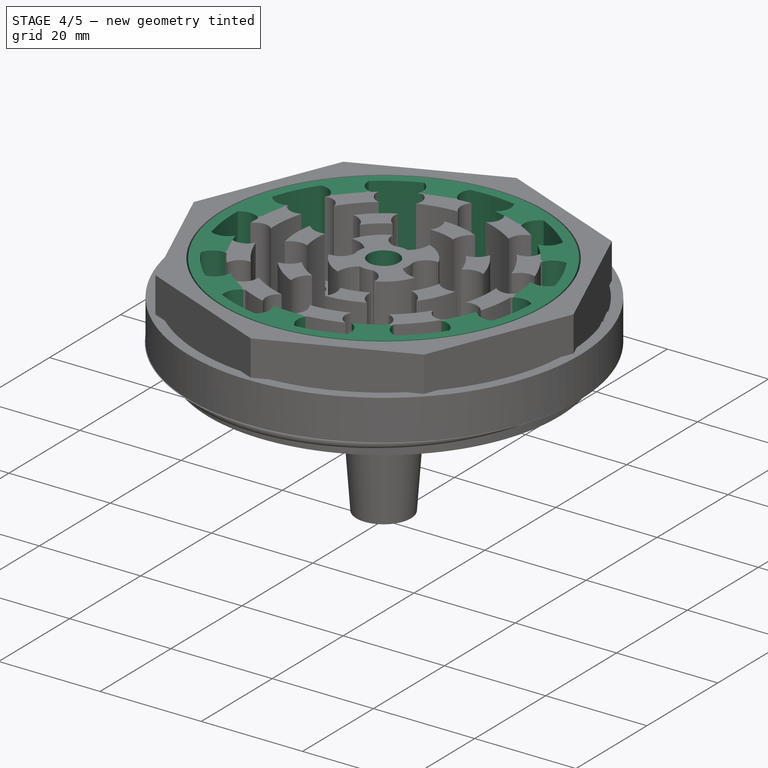
[diagram: stage 4 of 5 — iso view after this stage's code; geometry added in this stage tinted green]
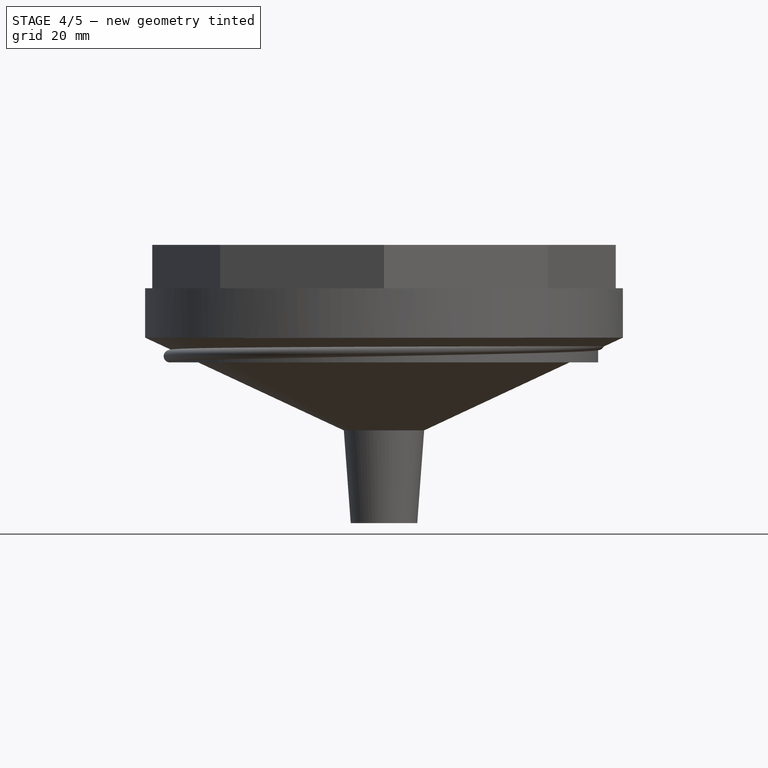
[diagram: stage 4 of 5 — front view after this stage's code; geometry added in this stage tinted green]
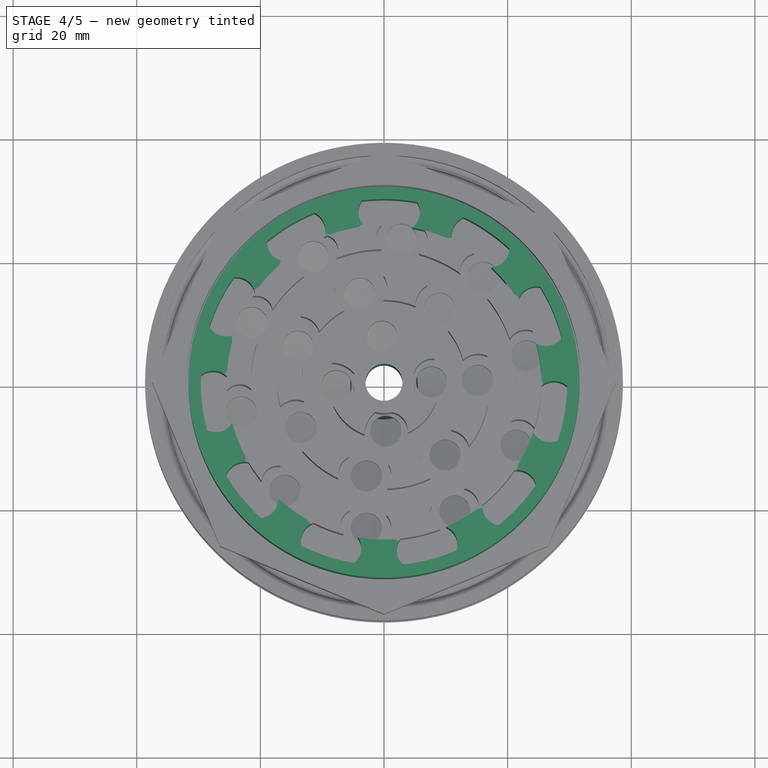
[diagram: stage 4 of 5 — top view after this stage's code; geometry added in this stage tinted green]
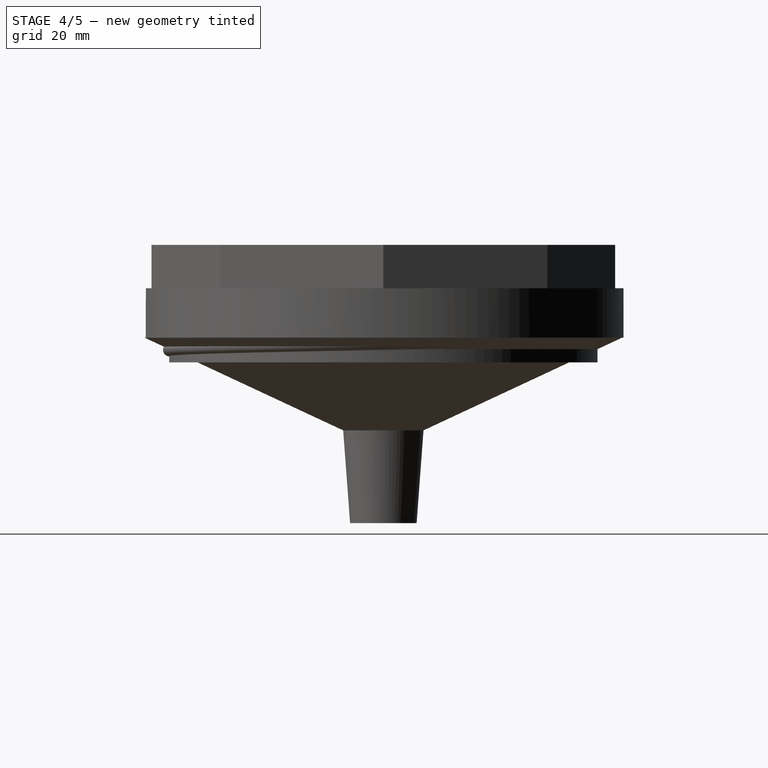
[diagram: stage 4 of 5 — right view after this stage's code; geometry added in this stage tinted green]
FEATURE [Spreadsheet::Sheet] Spreadsheet  label="Parameters"
  PythonMode = false
  ShowCells = 0
  TreeRank = 1
  cells = A1=Overall Diameter; B1(Diameter)=75; D1=Threaded Ring Diameter; E1(Threaded_Ring_Diameter)==Diameter * cos(22.5); A2=Overlap Diameter; B2(Overlap_Diameter)==(Diameter / 2 * cos(22.5) - Wall_Thickness) * 2 - 2; D2=Thread Height; E2(Thread_Height)=2; A3=Overlap Spacing; B3(Overlap_Spacing)=0.5; D3=Thread Pitch; E3(Thread_Pitch)=6; A4=Wall Thickness; B4(Wall_Thickness)=2; D4=Cone Side Angle; E4(Cone_Angle)=8.5; A5=Post Diameter; B5(Post_Diameter)=10; D5=Cone Collection Height; E5(Cone_Collection_Height)=15; A6=Tooth Height; B6(Tooth_Height)=15; D6=Cone Insert Length; E6(Cone_Insert_Height)=15; A7=Tooth Thickness; B7(Tooth_Thickness)==(Overlap_Diameter / 2 - Wall_Thickness - Post_Diameter / 2) / 6; D7=Cone Insert Max Width; E7(Cone_Insert_Width)=13; A8=Tooth Spacing; B8(Tooth_Spacing)=0.2; A9=Top Handle Height; B9(Top_Height)=15; A10=Hole Diameter; B10(Hole_Diameter)=5; A11=Bottom Threaded Height; B11(Threaded_Height)=8; A13=Top Outer Ring Max; B13(Top_Outer_Diameter_Max_Calculated)==Overlap_Diameter - 2 * Wall_Thickness; C13(Top_Outer_Diameter_Max)==Top_Outer_Diameter_Max_Calculated + 0.1; D13=Bottom Outer Ring Max; E13(Bottom_Outer_Diameter_Max_Calculated)==Top_Outer_Diameter_Min_Calculated; F13(Bottom_Outer_Diameter_Max)==Bottom_Outer_Diameter_Max_Calculated - Tooth_Spacing; A14=Top Outer Ring Min; B14(Top_Outer_Diameter_Min_Calculated)==Top_Outer_Diameter_Max_Calculated - 2 * Tooth_Thickness; C14(Top_Outer_Diameter_Min)==Top_Outer_Diameter_Min_Calculated - Tooth_Spacing; D14=Bottom Outer Ring Min; E14(Bottom_Outer_Diameter_Min_Calculated)==Top_Middle_Diameter_Max_Calculated; F14(Bottom_Outer_Diameter_Min)==Bottom_Outer_Diameter_Min_Calculated + Tooth_Spacing; A15=Top Middle Ring Max; B15(Top_Middle_Diameter_Max_Calculated)==Top_Outer_Diameter_Min_Calculated - 2 * Tooth_Thickness; C15(Top_Middle_Diameter_Max)==Top_Middle_Diameter_Max_Calculated - Tooth_Spacing; D15=Bottom Middle Ring Max; E15(Bottom_Middle_Diameter_Max_Calculated)==Top_Middle_Diameter_Min_Calculated; F15(Bottom_Middle_Diameter_Max)==Bottom_Middle_Diameter_Max_Calculated - Tooth_Spacing; A16=Top Middle Ring Min; B16(Top_Middle_Diameter_Min_Calculated)==Top_Middle_Diameter_Max_Calculated - 2 * Tooth_Thickness; C16(Top_Middle_Diameter_Min)==Top_Middle_Diameter_Min_Calculated + Tooth_Spacing; D16=Bottom Middle Ring Min; E16(Bottom_Middle_Diameter_Min_Calculated)==Top_Inner_Diameter_Max_Calculated; F16(Bottom_Middle_Diameter_Min)==Bottom_Middle_Diameter_Min_Calculated + Tooth_Spacing; A17=Top Inner Ring Max; B17(Top_Inner_Diameter_Max_Calculated)==Top_Middle_Diameter_Min_Calculated - 2 * Tooth_Thickness; C17(Top_Inner_Diameter_Max)==Top_Inner_Diameter_Max_Calculated - Tooth_Spacing; D17=Bottom Inner Ring Max; E17(Bottom_Inner_Diameter_Max_Calculated)==Top_Inner_Diameter_Min_Calculated; F17(Bottom_Inner_Diameter_Max)==Bottom_Inner_Diameter_Max_Calculated - Tooth_Spacing; A18=Top Inner Ring Min; B18(Top_Inner_Diameter_Min_Calculated)==Top_Inner_Diameter_Max_Calculated - 2 * Tooth_Thickness; C18(Top_Inner_Diameter_Min)==Top_Inner_Diameter_Min_Calculated + Tooth_Spacing; D18=Bottom Inner Ring Min; E18(Bottom_Inner_Diameter_Min_Calculated)==Bottom_Inner_Diameter_Max_Calculated - 2 * Tooth_Thickness; F18(Bottom_Inner_Diameter_Min)==Bottom_Inner_Diameter_Min_Calculated - 0.1; A20=Top Outer Tooth Count; B20(Top_Outer_Count)=11; A21=Top Middle Tooth Count; B21(Top_Middle_Count)=8; A22=Top Inner Tooth Count; B22(Top_Inner_Count)=5; A23=Bottom Outer Tooth Count; B23(Bottom_Outer_Count)=10; A24=Bottom Middle Tooth Count; B24(Bottom_Middle_Count)=7; A25=Bottom Inner Tooth Count; B25(Bottom_Inner_Count)=4
FEATURE [Sketcher::SketchObject] Sketch
  ArcFitTolerance = 1e-06
  AttachmentSupport = -> [XY_Plane]
  ExternalBSplineMaxDegree = 5
  ExternalBSplineTolerance = 0.0001
  FullyConstrained = true
  InternalTolerance = 1e-06
  InvalidShape = false
  MakeInternals = false
  MapMode = 5
  Support = -> [XY_Plane]
  TreeRank = 12
  ValidateShape = true
  expr: Constraints[1] = Spreadsheet.Overlap_Diameter
  expr: Constraints[3] = <<Parameters>>.Overlap_Diameter - 2 * <<Parameters>>.Wall_Thickness
  sketch-geometry (2):
    g0: Circle CenterX=0 CenterY=0 CenterZ=0 NormalX=0 NormalY=0 NormalZ=1 AngleXU=0 Radius=31.6455
    g1: Circle CenterX=0 CenterY=0 CenterZ=0 NormalX=0 NormalY=0 NormalZ=1 AngleXU=0 Radius=29.6455
  constraints (4):
    c: Coincident(g0,g-1)
    c: Diameter(g0) = 63.291
    c: Coincident(g1,g0)
    c: Diameter(g1) = 59.291
FEATURE [PartDesign::Pad] Pad  label="Top Ring"
  AddSubType = 0
  AlongSketchNormal = false
  AutoTaperInnerAngle = true
  CheckUpToFaceLimits = true
  ClaimChildren = false
  Direction = (0,0,1)
  Fit = 0
  FitJoin = 0
  InnerFit = 0
  InnerFitJoin = 0
  InvalidShape = false
  Length = 15
  Length2 = 100
  Linearize = true
  NewSolid = false
  Profile = -> Sketch
  Suppress = false
  TaperInnerAngle = 0
  TaperInnerAngleRev = 0
  TreeRank = 13
  Type = 0
  ValidateShape = true
  _ProfileBasedVersion = 1
  expr: Length = <<Parameters>>.Tooth_Height
FEATURE [Sketcher::SketchObject] Sketch001
  ArcFitTolerance = 1e-06
  AttachmentSupport = -> [XY_Plane]
  ExternalBSplineMaxDegree = 5
  ExternalBSplineTolerance = 0.0001
  FullyConstrained = false
  InternalTolerance = 1e-06
  InvalidShape = false
  MakeInternals = false
  MapMode = 5
  Support = -> [XY_Plane]
  TreeRank = 14
  ValidateShape = true
  expr: Constraints[2] = <<Parameters>>.Top_Outer_Diameter_Max
  expr: Constraints[3] = <<Parameters>>.Top_Outer_Diameter_Min
  sketch-geometry (4):
    g0: ArcOfCircle CenterX=0 CenterY=0 CenterZ=0 NormalX=0 NormalY=0 NormalZ=1 AngleXU=0 Radius=29.6955 StartAngle=1.11906 EndAngle=1.39045
    g1: ArcOfCircle CenterX=0 CenterY=0 CenterZ=0 NormalX=0 NormalY=0 NormalZ=1 AngleXU=0 Radius=25.4379 StartAngle=1.11948 EndAngle=1.39061
    g2: ArcOfCircle CenterX=2.67193 CenterY=27.5362 CenterZ=0 NormalX=0 NormalY=0 NormalZ=1 AngleXU=0 Radius=3.14017 StartAngle=5.35697 EndAngle=6.84683
    g3: ArcOfCircle CenterX=14.0767 CenterY=23.8038 CenterZ=0 NormalX=0 NormalY=0 NormalZ=1 AngleXU=0 Radius=3.11854 StartAngle=1.93599 EndAngle=3.4387
  constraints (9):
    c: Coincident(g0,g-1)
    c: Coincident(g1,g0)
    c: Diameter(g0) = 59.391
    c: Diameter(g1) = 50.8758
    c: Coincident(g2,g0)
    c: Coincident(g2,g1)
    c: Coincident(g3,g0)
    c: Coincident(g3,g1)
    c: Distance(g2,g3) = 12
FEATURE [PartDesign::Pad] Pad001  label="Top Outer Tooth Profile"
  AddSubType = 0
  AlongSketchNormal = false
  AutoTaperInnerAngle = true
  BaseFeature = -> Pad
  CheckUpToFaceLimits = true
  ClaimChildren = false
  Direction = (0,0,1)
  Fit = 0
  FitJoin = 0
  InnerFit = 0
  InnerFitJoin = 0
  InvalidShape = false
  Length = 15
  Length2 = 100
  Linearize = true
  NewSolid = false
  Profile = -> Sketch001
  Suppress = false
  TaperInnerAngle = 0
  TaperInnerAngleRev = 0
  TreeRank = 15
  Type = 0
  ValidateShape = true
  _ProfileBasedVersion = 1
  expr: Length = <<Parameters>>.Tooth_Height
FEATURE [PartDesign::PolarPattern] PolarPattern  label="Top Outer Tooth Ring"
  AddSubType = 0
  Angle = 360
  Axis = -> Sketch001 [N_Axis]
  BaseFeature = -> Pad001
  CopyShape = false
  InvalidShape = false
  NewSolid = false
  Occurrences = 11
  OriginalSubs = -> [Pad001]
  Originals = -> [Pad001]
  ParallelTransform = true
  SubTransform = true
  Suppress = false
  TreeRank = 16
  ValidateShape = true
  _Version = 3
  expr: Occurrences = <<Parameters>>.Top_Outer_Count
FEATURE [Sketcher::SketchObject] Sketch017
  ArcFitTolerance = 1e-06
  AttachmentSupport = -> [PolarPattern007]
  ExternalBSplineMaxDegree = 5
  ExternalBSplineTolerance = 0.0001
  FullyConstrained = false
  InternalTolerance = 1e-06
  InvalidShape = false
  MakeInternals = false
  MapMode = 5
  Placement = pos=(0,0,-1.8e-15) rot=(0,0,1;0rad)
  Support = -> [PolarPattern007]
  TreeRank = 69
  ValidateShape = true
  expr: Constraints[0] = <<Parameters>>.Hole_Diameter
  sketch-geometry (1):
    g0: Circle CenterX=-0.301594 CenterY=7.66643 CenterZ=0 NormalX=0 NormalY=0 NormalZ=1 AngleXU=0 Radius=2.5
  constraints (1):
    c: Diameter(g0) = 5
FEATURE [PartDesign::Pocket] Pocket004  label="Bottom Inner Hole Profile"
  AddSubType = 1
  AutoTaperInnerAngle = true
  BaseFeature = -> PolarPattern007
  CheckUpToFaceLimits = true
  ClaimChildren = false
  Fit = 0
  FitJoin = 0
  InnerFit = 0
  InnerFitJoin = 0
  InvalidShape = false
  Length = 5
  Length2 = 100
  Linearize = true
  NewSolid = false
  Profile = -> Sketch017
  Suppress = false
  TaperInnerAngle = 0
  TaperInnerAngleRev = 0
  TreeRank = 70
  Type = 1
  ValidateShape = true
  _ProfileBasedVersion = 1
  _Version = 1
FEATURE [PartDesign::PolarPattern] PolarPattern008  label="Bottom Inner Hole Ring"
  AddSubType = 0
  Angle = 360
  Axis = -> Sketch017 [N_Axis]
  BaseFeature = -> Pocket004
  CopyShape = false
  InvalidShape = false
  NewSolid = false
  Occurrences = 4
  OriginalSubs = -> [Pocket004]
  Originals = -> [Pocket004]
  ParallelTransform = true
  SubTransform = true
  Suppress = false
  TreeRank = 71
  ValidateShape = true
  _Version = 3
  expr: Occurrences = <<Parameters>>.Bottom_Inner_Count
FEATURE [Sketcher::SketchObject] Sketch018
  ArcFitTolerance = 1e-06
  AttachmentSupport = -> [PolarPattern008]
  ExternalBSplineMaxDegree = 5
  ExternalBSplineTolerance = 0.0001
  FullyConstrained = true
  InternalTolerance = 1e-06
  InvalidShape = false
  MakeInternals = false
  MapMode = 5
  Placement = pos=(0,0,15) rot=(0,0,1;0rad)
  Support = -> [PolarPattern008]
  TreeRank = 73
  ValidateShape = true
  expr: Constraints[1] = <<Parameters>>.Post_Diameter - 2 * <<Parameters>>.Wall_Thickness
  sketch-geometry (1):
    g0: Circle CenterX=0 CenterY=0 CenterZ=0 NormalX=0 NormalY=0 NormalZ=1 AngleXU=0 Radius=3
  constraints (2):
    c: Coincident(g0,g-1)
    c: Diameter(g0) = 6
FEATURE [PartDesign::Pocket] Pocket005  label="Packing Hole"
  AddSubType = 1
  AutoTaperInnerAngle = true
  BaseFeature = -> PolarPattern008
  CheckUpToFaceLimits = true
  ClaimChildren = false
  Fit = 0
  FitJoin = 0
  InnerFit = 0
  InnerFitJoin = 0
  InvalidShape = false
  Length = 5
  Length2 = 100
  Linearize = true
  NewSolid = false
  Profile = -> Sketch018
  Suppress = false
  TaperInnerAngle = 0
  TaperInnerAngleRev = 0
  TreeRank = 74
  Type = 1
  ValidateShape = true
  _ProfileBasedVersion = 1
  _Version = 1
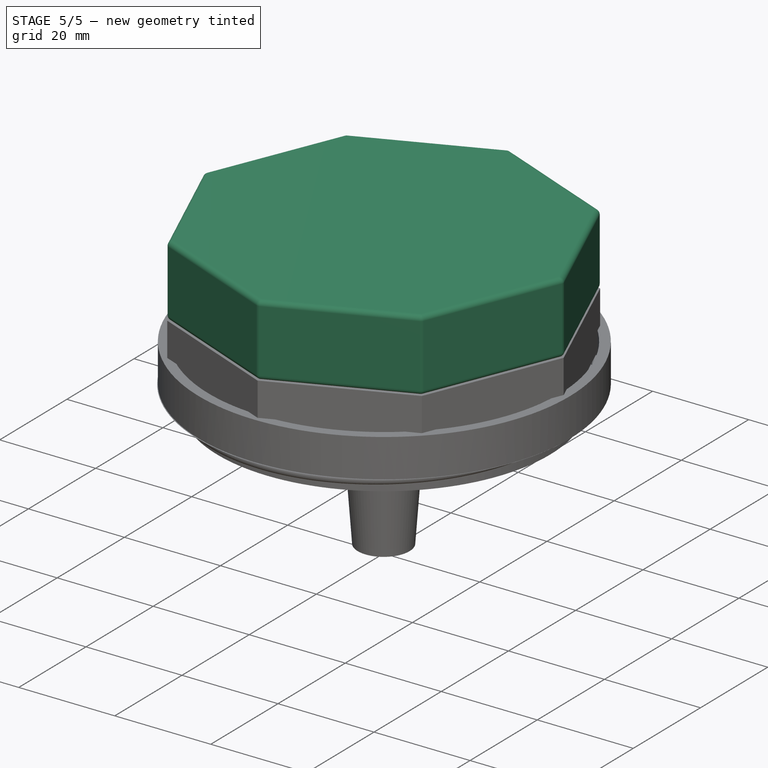
[diagram: stage 5 of 5 — iso view after this stage's code; geometry added in this stage tinted green]
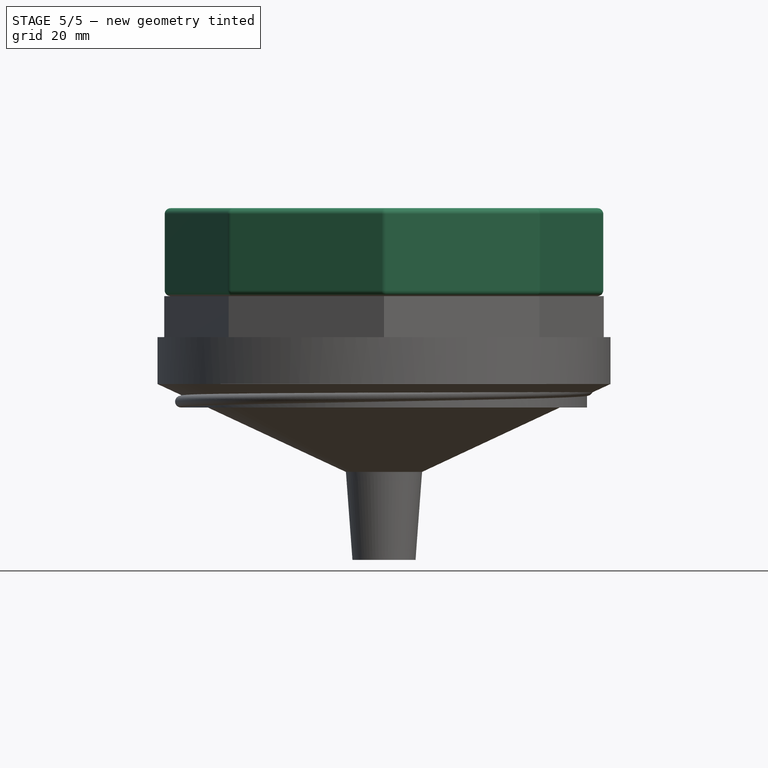
[diagram: stage 5 of 5 — front view after this stage's code; geometry added in this stage tinted green]
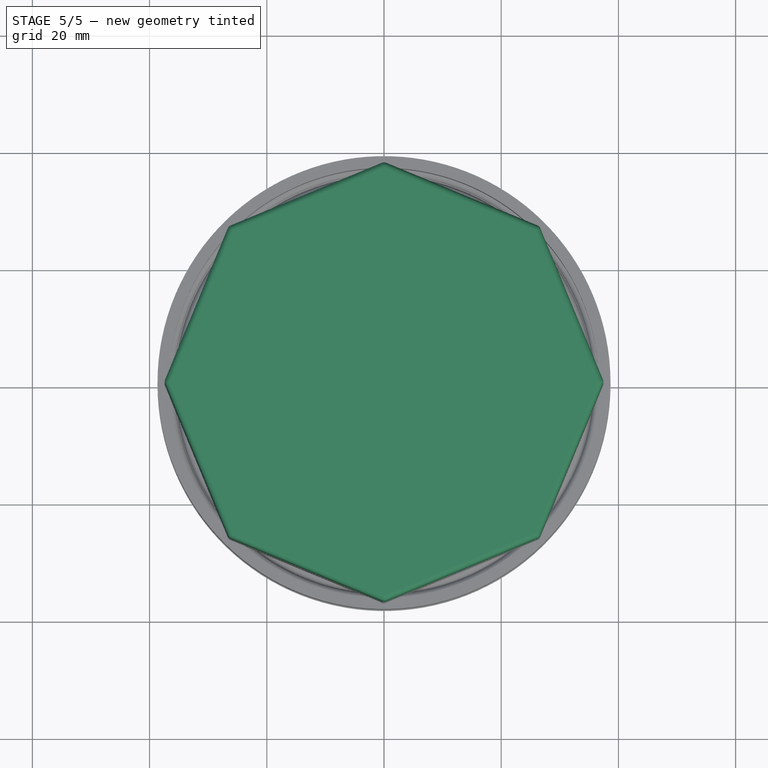
[diagram: stage 5 of 5 — top view after this stage's code; geometry added in this stage tinted green]
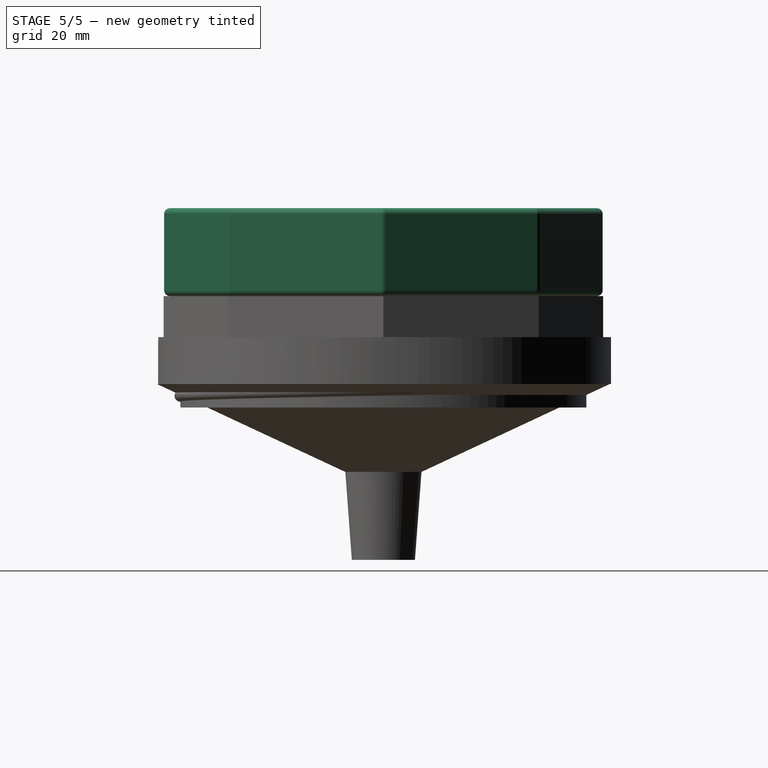
[diagram: stage 5 of 5 — right view after this stage's code; geometry added in this stage tinted green]
FEATURE [Sketcher::SketchObject] Sketch002
  ArcFitTolerance = 1e-06
  AttachmentSupport = -> [XY_Plane]
  ExternalBSplineMaxDegree = 5
  ExternalBSplineTolerance = 0.0001
  FullyConstrained = false
  InternalTolerance = 1e-06
  InvalidShape = false
  MakeInternals = false
  MapMode = 5
  Support = -> [XY_Plane]
  TreeRank = 17
  ValidateShape = true
  expr: Constraints[2] = <<Parameters>>.Top_Middle_Diameter_Max
  expr: Constraints[3] = <<Parameters>>.Top_Middle_Diameter_Min
  sketch-geometry (4):
    g0: ArcOfCircle CenterX=0 CenterY=0 CenterZ=0 NormalX=0 NormalY=0 NormalZ=1 AngleXU=0 Radius=21.3303 StartAngle=1.30022 EndAngle=1.66149
    g1: ArcOfCircle CenterX=0 CenterY=0 CenterZ=0 NormalX=0 NormalY=0 NormalZ=1 AngleXU=0 Radius=17.4227 StartAngle=1.30067 EndAngle=1.66147
    g2: ArcOfCircle CenterX=-4.14683 CenterY=19.0792 CenterZ=0 NormalX=0 NormalY=0 NormalZ=1 AngleXU=0 Radius=3.09626 StartAngle=5.6911 EndAngle=7.05683
    g3: ArcOfCircle CenterX=7.79891 CenterY=17.9392 CenterZ=0 NormalX=0 NormalY=0 NormalZ=1 AngleXU=0 Radius=3.35242 StartAngle=2.24685 EndAngle=3.49119
  constraints (9):
    c: Coincident(g0,g-1)
    c: Coincident(g1,g0)
    c: Diameter(g0) = 42.6606
    c: Diameter(g1) = 34.8455
    c: Coincident(g2,g0)
    c: Coincident(g2,g1)
    c: Coincident(g3,g0)
    c: Coincident(g3,g1)
    c: Distance(g2,g3) = 12
FEATURE [PartDesign::Pad] Pad002  label="Top Middle Tooth Profile"
  AddSubType = 0
  AlongSketchNormal = false
  AutoTaperInnerAngle = true
  BaseFeature = -> PolarPattern
  CheckUpToFaceLimits = true
  ClaimChildren = false
  Direction = (0,0,1)
  Fit = 0
  FitJoin = 0
  InnerFit = 0
  InnerFitJoin = 0
  InvalidShape = false
  Length = 15
  Length2 = 100
  Linearize = true
  NewSolid = false
  Profile = -> Sketch002
  Suppress = false
  TaperInnerAngle = 0
  TaperInnerAngleRev = 0
  TreeRank = 18
  Type = 0
  ValidateShape = true
  _ProfileBasedVersion = 1
  expr: Length = <<Parameters>>.Tooth_Height
FEATURE [PartDesign::PolarPattern] PolarPattern001  label="Top Middle Tooth Ring"
  AddSubType = 0
  Angle = 360
  Axis = -> Sketch002 [N_Axis]
  BaseFeature = -> Pad002
  CopyShape = false
  InvalidShape = false
  NewSolid = false
  Occurrences = 8
  OriginalSubs = -> [Pad002]
  Originals = -> [Pad002]
  ParallelTransform = true
  SubTransform = true
  Suppress = false
  TreeRank = 19
  ValidateShape = true
  _Version = 3
  expr: Occurrences = <<Parameters>>.Top_Middle_Count
FEATURE [Sketcher::SketchObject] Sketch003
  ArcFitTolerance = 1e-06
  AttachmentSupport = -> [XY_Plane]
  ExternalBSplineMaxDegree = 5
  ExternalBSplineTolerance = 0.0001
  FullyConstrained = false
  InternalTolerance = 1e-06
  InvalidShape = false
  MakeInternals = false
  MapMode = 5
  Support = -> [XY_Plane]
  TreeRank = 20
  ValidateShape = true
  expr: Constraints[2] = <<Parameters>>.Top_Inner_Diameter_Max
  expr: Constraints[3] = <<Parameters>>.Top_Inner_Diameter_Min
  sketch-geometry (4):
    g0: ArcOfCircle CenterX=0 CenterY=0 CenterZ=0 NormalX=0 NormalY=0 NormalZ=1 AngleXU=0 Radius=13.1152 StartAngle=0.682482 EndAngle=1.26685
    g1: ArcOfCircle CenterX=0 CenterY=0 CenterZ=0 NormalX=0 NormalY=0 NormalZ=1 AngleXU=0 Radius=9.20758 StartAngle=0.696126 EndAngle=1.30411
    g2: ArcOfCircle CenterX=-0.303034 CenterY=12.1336 CenterZ=0 NormalX=0 NormalY=0 NormalZ=1 AngleXU=0 Radius=4.24537 StartAngle=5.41074 EndAngle=6.3729
    g3: ArcOfCircle CenterX=9.75828 CenterY=5.59375 CenterZ=0 NormalX=0 NormalY=0 NormalZ=1 AngleXU=0 Radius=2.71086 StartAngle=1.41553 EndAngle=3.02676
  constraints (9):
    c: Coincident(g0,g-1)
    c: Coincident(g1,g0)
    c: Diameter(g0) = 26.2303
    c: Diameter(g1) = 18.4152
    c: Coincident(g2,g0)
    c: Coincident(g2,g1)
    c: Coincident(g3,g0)
    c: Coincident(g3,g1)
    c: Distance(g2,g3) = 12
FEATURE [PartDesign::Pad] Pad003  label="Top Inner Tooth Profile"
  AddSubType = 0
  AlongSketchNormal = false
  AutoTaperInnerAngle = true
  BaseFeature = -> PolarPattern001
  CheckUpToFaceLimits = true
  ClaimChildren = false
  Direction = (0,0,1)
  Fit = 0
  FitJoin = 0
  InnerFit = 0
  InnerFitJoin = 0
  InvalidShape = false
  Length = 15
  Length2 = 100
  Linearize = true
  NewSolid = false
  Profile = -> Sketch003
  Suppress = false
  TaperInnerAngle = 0
  TaperInnerAngleRev = 0
  TreeRank = 21
  Type = 0
  ValidateShape = true
  _ProfileBasedVersion = 1
  expr: Length = <<Parameters>>.Tooth_Height
FEATURE [PartDesign::PolarPattern] PolarPattern002  label="Top Inner Tooth Ring"
  AddSubType = 0
  Angle = 360
  Axis = -> Sketch003 [N_Axis]
  BaseFeature = -> Pad003
  CopyShape = false
  InvalidShape = false
  NewSolid = false
  Occurrences = 5
  OriginalSubs = -> [Pad003]
  Originals = -> [Pad003]
  ParallelTransform = true
  SubTransform = true
  Suppress = false
  TreeRank = 22
  ValidateShape = true
  _Version = 3
  expr: Occurrences = <<Parameters>>.Top_Inner_Count
FEATURE [Sketcher::SketchObject] Sketch008
  ArcFitTolerance = 1e-06
  AttachmentSupport = -> [PolarPattern002]
  ExternalBSplineMaxDegree = 5
  ExternalBSplineTolerance = 0.0001
  FullyConstrained = true
  InternalTolerance = 1e-06
  InvalidShape = false
  MakeInternals = false
  MapMode = 5
  Placement = pos=(0,0,15) rot=(0,0,1;0rad)
  Support = -> [PolarPattern002]
  TreeRank = 45
  ValidateShape = true
  expr: Constraints[25] = <<Parameters>>.Diameter
  sketch-geometry (9):
    g0: LineSegment StartX=0 StartY=37.5 StartZ=0 EndX=-26.5165 EndY=26.5165 EndZ=0
    g1: LineSegment StartX=-26.5165 StartY=26.5165 StartZ=0 EndX=-37.5 EndY=3.6e-15 EndZ=0
    g2: LineSegment StartX=-37.5 StartY=3.3e-15 StartZ=0 EndX=-26.5165 EndY=-26.5165 EndZ=0
    g3: LineSegment StartX=-26.5165 StartY=-26.5165 StartZ=0 EndX=-3.6e-15 EndY=-37.5 EndZ=0
    g4: LineSegment StartX=-2.7e-15 StartY=-37.5 StartZ=0 EndX=26.5165 EndY=-26.5165 EndZ=0
    g5: LineSegment StartX=26.5165 StartY=-26.5165 StartZ=0 EndX=37.5 EndY=-3.6e-15 EndZ=0
    g6: LineSegment StartX=37.5 StartY=-3.3e-15 StartZ=0 EndX=26.5165 EndY=26.5165 EndZ=0
    g7: LineSegment StartX=26.5165 StartY=26.5165 StartZ=0 EndX=0 EndY=37.5 EndZ=0
    g8: Circle [constr] CenterX=0 CenterY=0 CenterZ=0 NormalX=0 NormalY=0 NormalZ=1 AngleXU=0 Radius=37.5
  constraints (20):
    c: Coincident(g0,g1)
    c: Coincident(g1,g2)
    c: Coincident(g2,g3)
    c: Coincident(g3,g4)
    c: Coincident(g4,g5)
    c: Coincident(g5,g6)
    c: Coincident(g6,g7)
    c: Coincident(g7,g0)
    c: Equal(g0, g1-g7) x7
    c: PointOnObject(g0,g8)
    c: PointOnObject(g1,g8)
    c: PointOnObject(g2,g8)
    c: PointOnObject(g3,g8)
    c: PointOnObject(g4,g8)
    c: PointOnObject(g5,g8)
    c: PointOnObject(g6,g8)
    c: PointOnObject(g7,g8)
    c: Coincident(g8,g-1)
    c: PointOnObject(g7,g-2)
    c: Diameter(g8) = 75
FEATURE [PartDesign::Pad] Pad008  label="Top Handle"
  AddSubType = 0
  AlongSketchNormal = false
  AutoTaperInnerAngle = true
  BaseFeature = -> PolarPattern002
  CheckUpToFaceLimits = true
  ClaimChildren = false
  Direction = (0,0,1)
  Fit = 0
  FitJoin = 0
  InnerFit = 0
  InnerFitJoin = 0
  InvalidShape = false
  Length = 15
  Length2 = 100
  Linearize = true
  NewSolid = false
  Profile = -> Sketch008
  Suppress = false
  TaperInnerAngle = 0
  TaperInnerAngleRev = 0
  TreeRank = 46
  Type = 0
  ValidateShape = true
  _ProfileBasedVersion = 1
  expr: Length = max(<<Parameters>>.Top_Height, 2 * <<Parameters>>.Wall_Thickness)
FEATURE [PartDesign::Fillet] Fillet  label="Top Handle Fillet"
  AddSubType = 0
  Base = -> Pad008 [Edge50,Edge107,Edge106,Edge52,Edge111,Edge110,Edge54,Edge115,Edge114,Edge102,Edge103,Edge48,Edge101,Edge105,Edge109,Edge113,Edge116,Edge55,Edge112,Edge53,Edge108,Edge51,Edge104,Edge49]
  BaseFeature = -> Pad008
  InvalidShape = false
  NewSolid = false
  Radius = 1
  SupportTransform = false
  Suppress = false
  TreeRank = 47
  ValidateShape = true
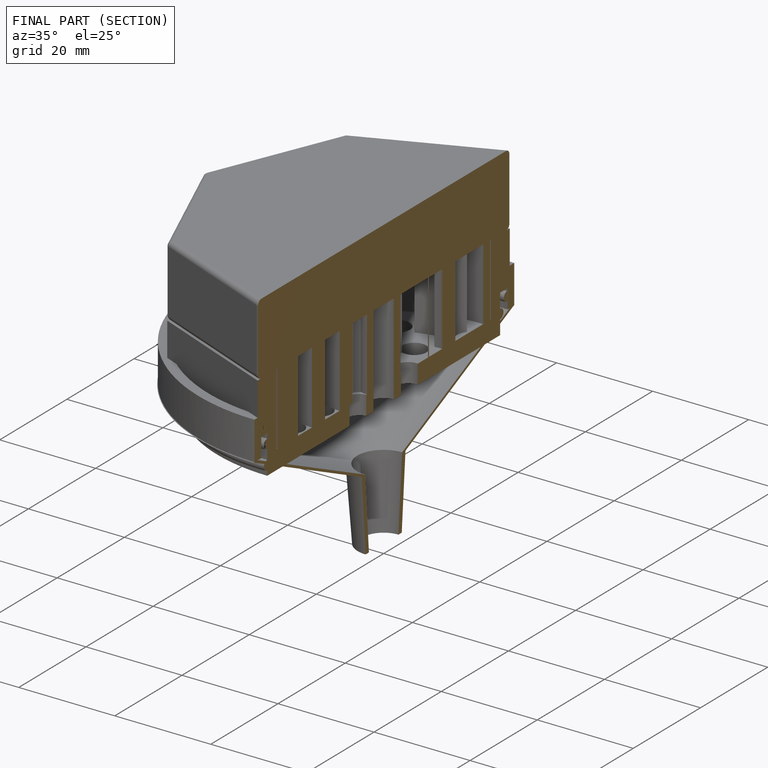
[diagram: finished part — half-section view (interior)]
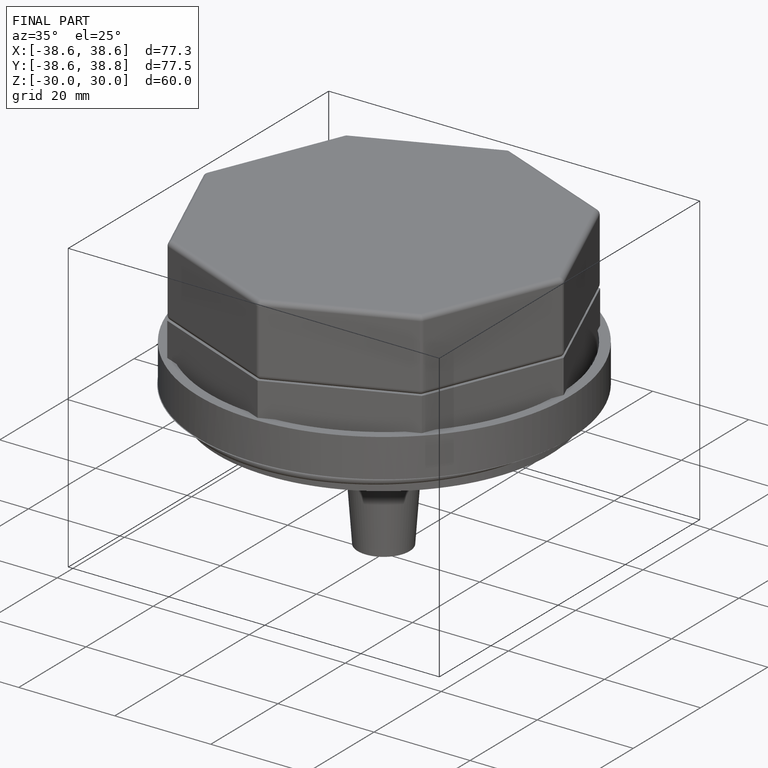
[diagram: finished part — iso view with bounding-box wireframe]
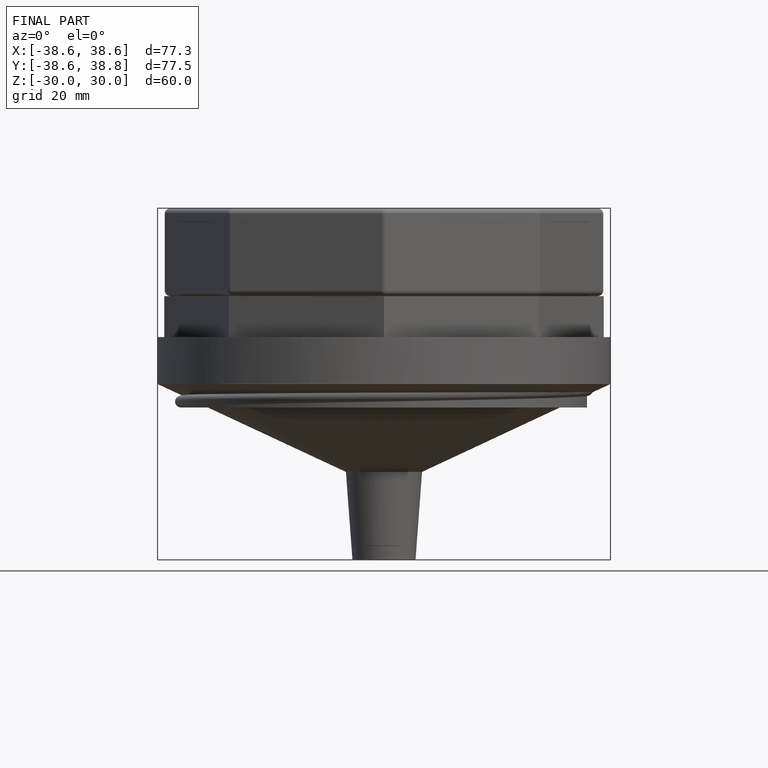
[diagram: finished part — front view with bounding-box wireframe]
